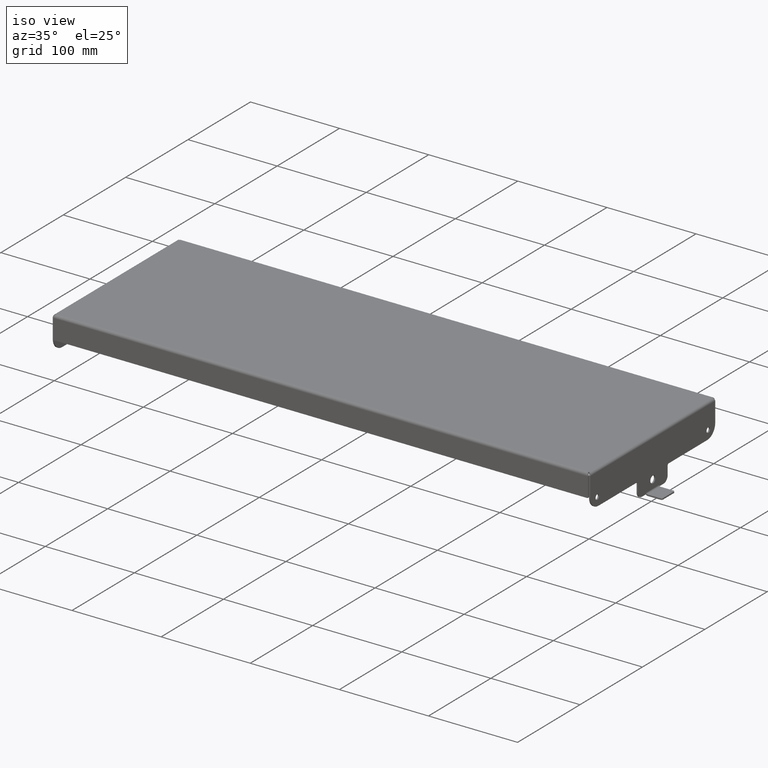
[diagram: clean part render]
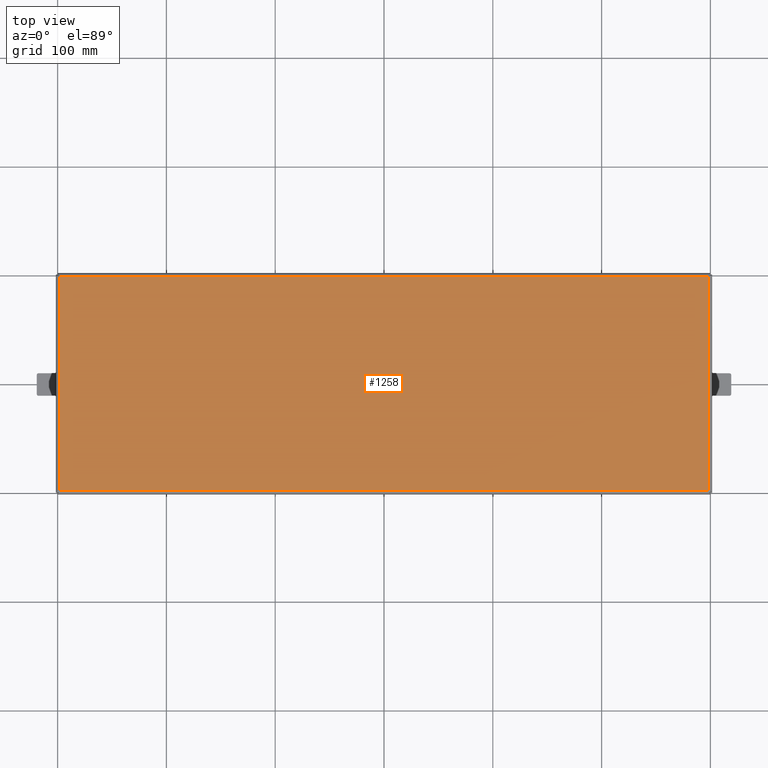
[diagram: tour spotlight — one face highlighted and labeled with its STEP entity id]
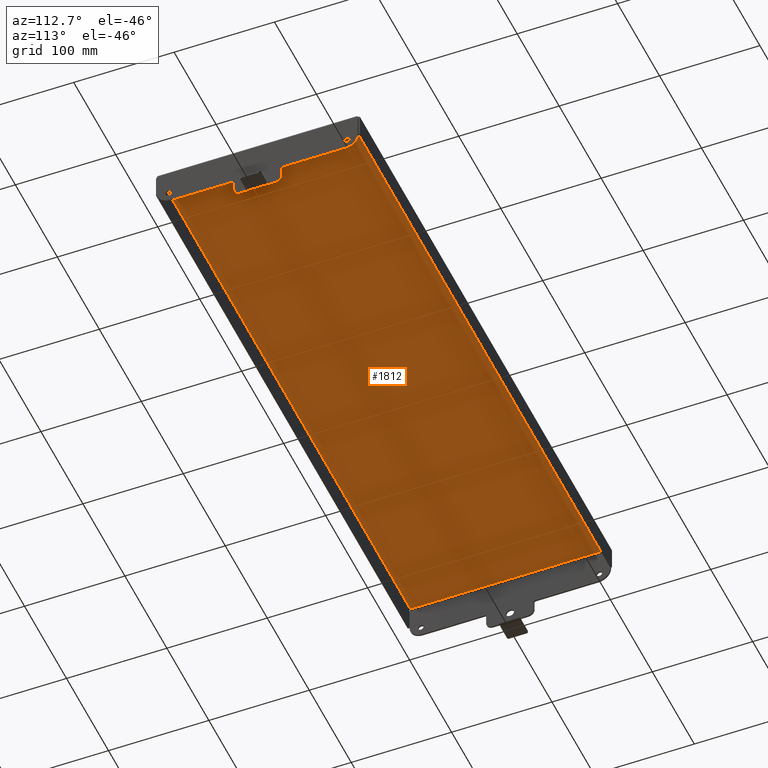
[diagram: tour spotlight — one face highlighted and labeled with its STEP entity id]
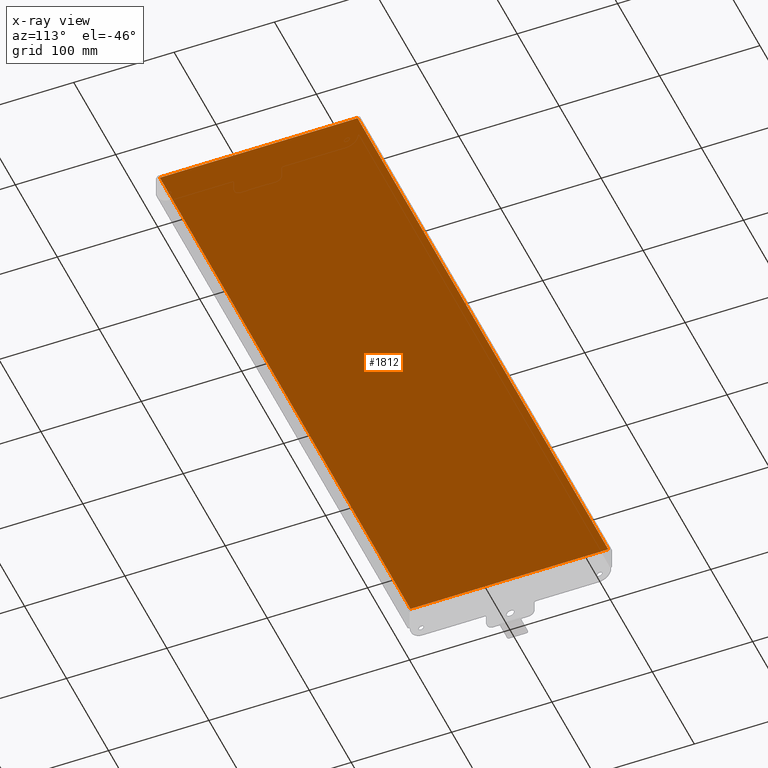
[diagram: x-ray of the same camera — body ghosted, this tour face saturated]
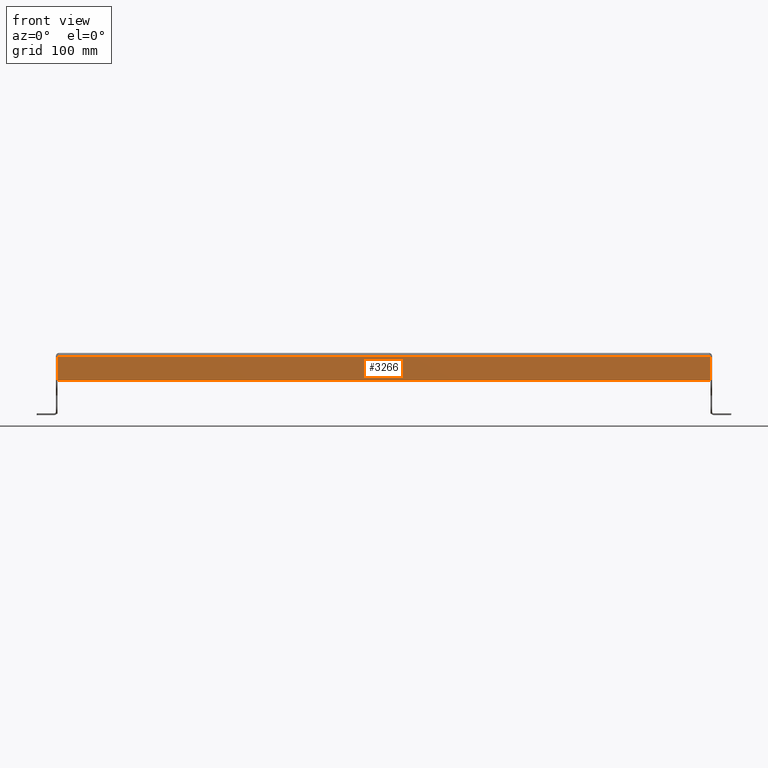
[diagram: tour spotlight — one face highlighted and labeled with its STEP entity id]
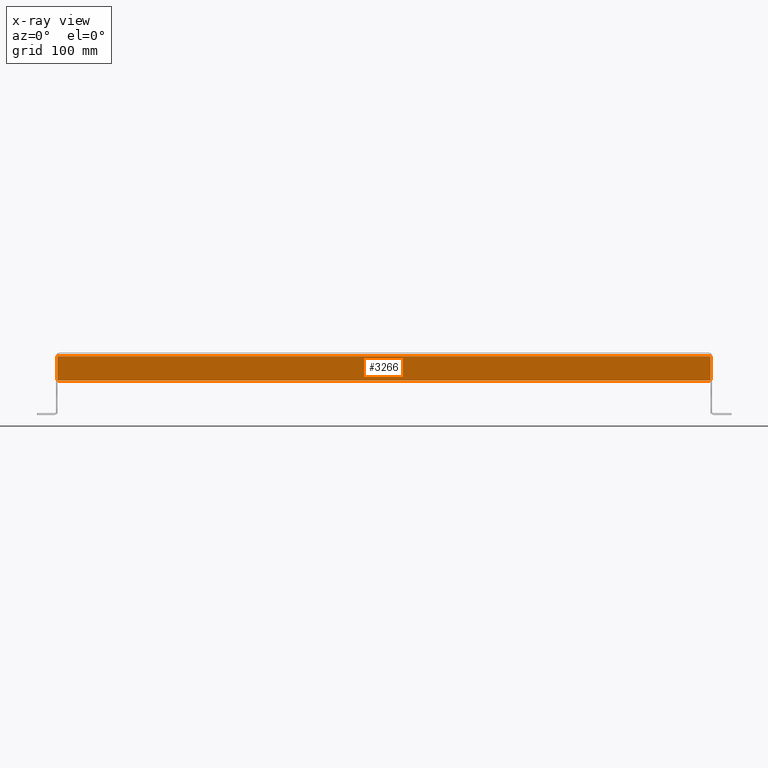
[diagram: x-ray of the same camera — body ghosted, this tour face saturated]
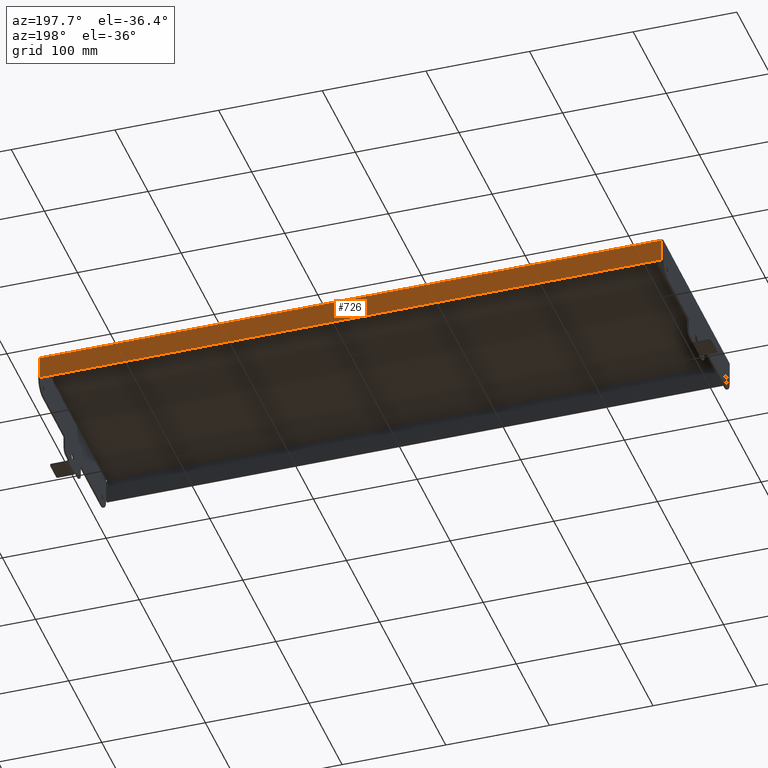
[diagram: tour spotlight — one face highlighted and labeled with its STEP entity id]
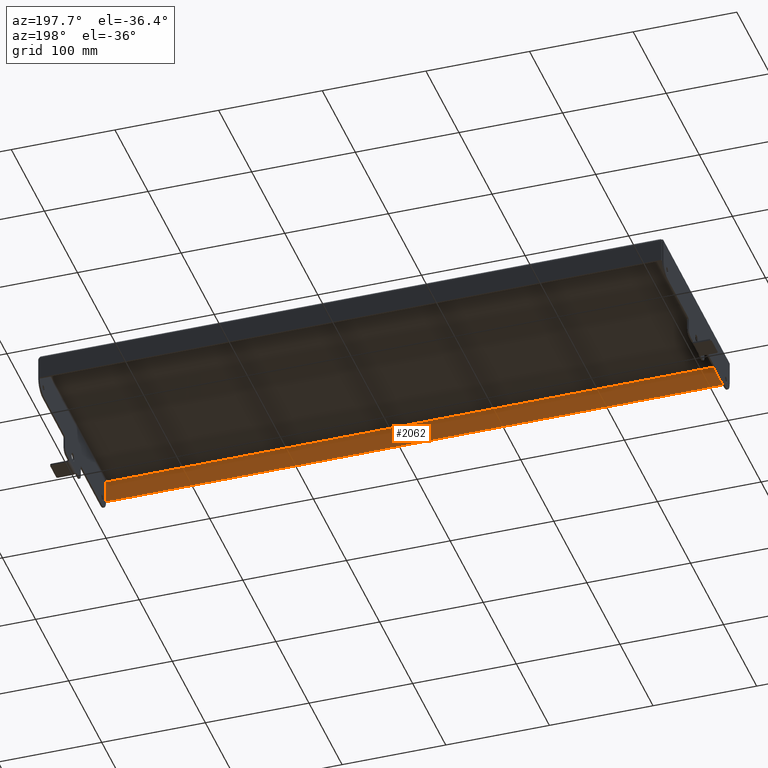
[diagram: tour spotlight — one face highlighted and labeled with its STEP entity id]
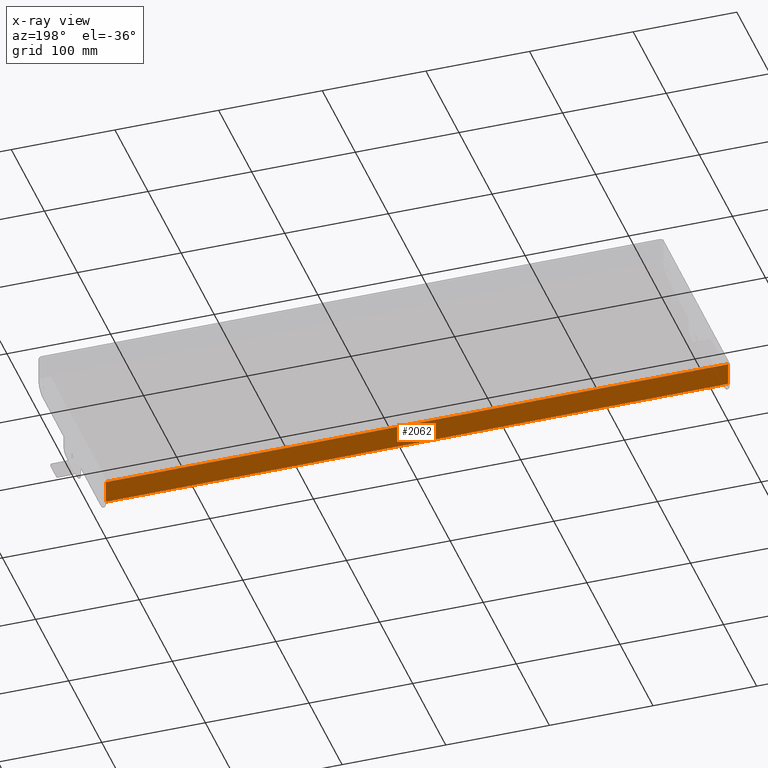
[diagram: x-ray of the same camera — body ghosted, this tour face saturated]
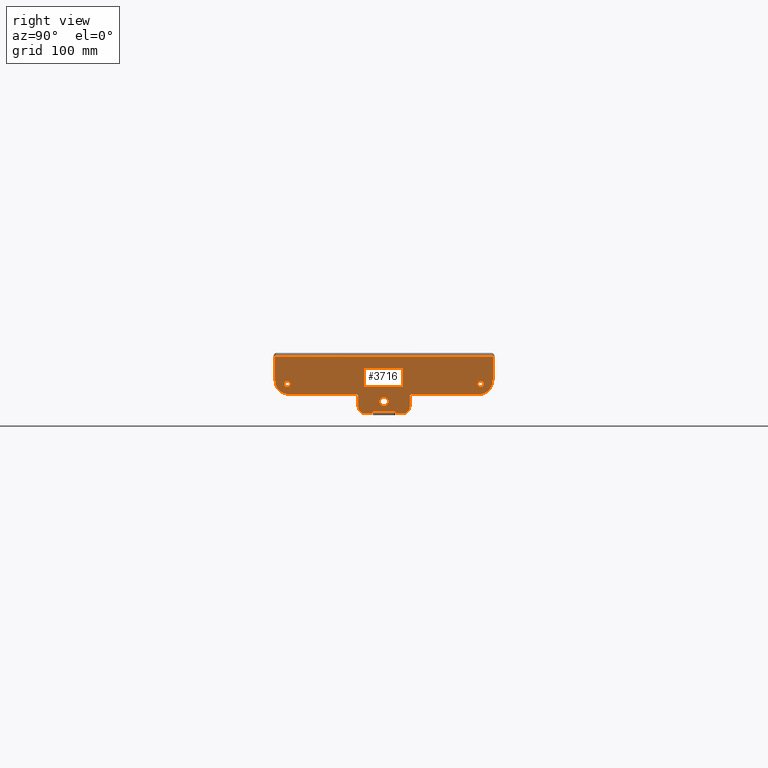
[diagram: tour spotlight — one face highlighted and labeled with its STEP entity id]
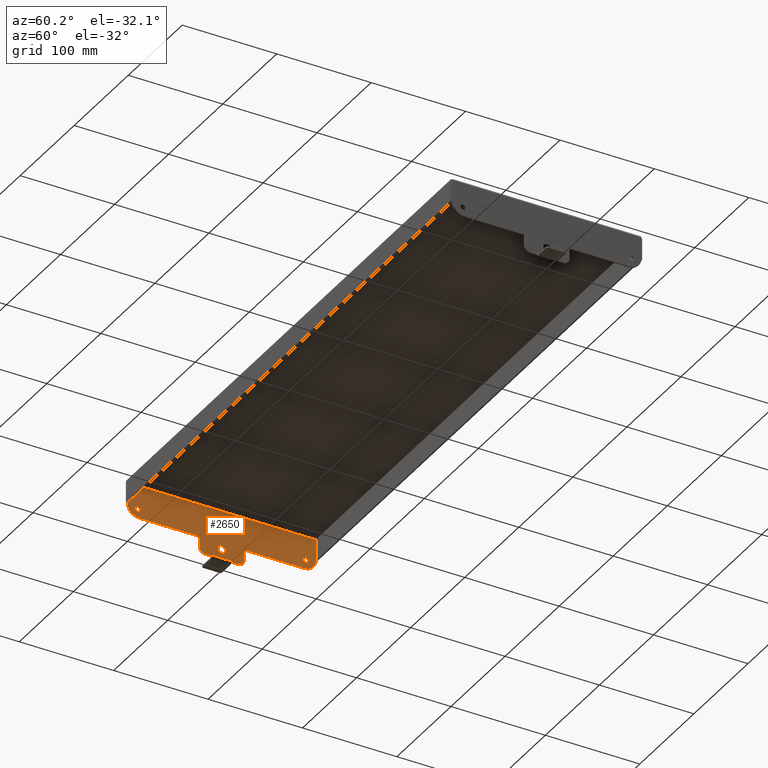
[diagram: tour spotlight — one face highlighted and labeled with its STEP entity id]
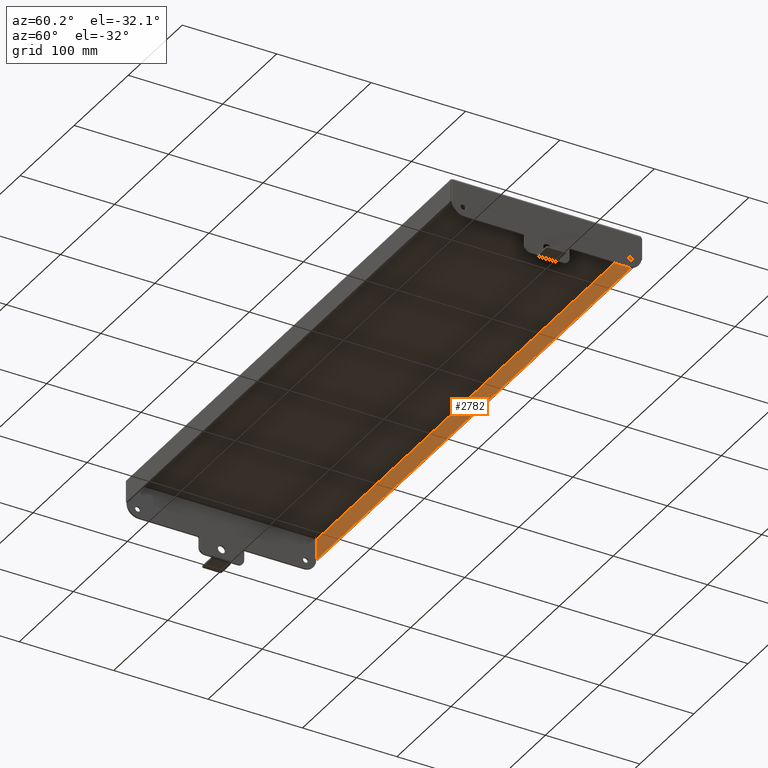
[diagram: tour spotlight — one face highlighted and labeled with its STEP entity id]
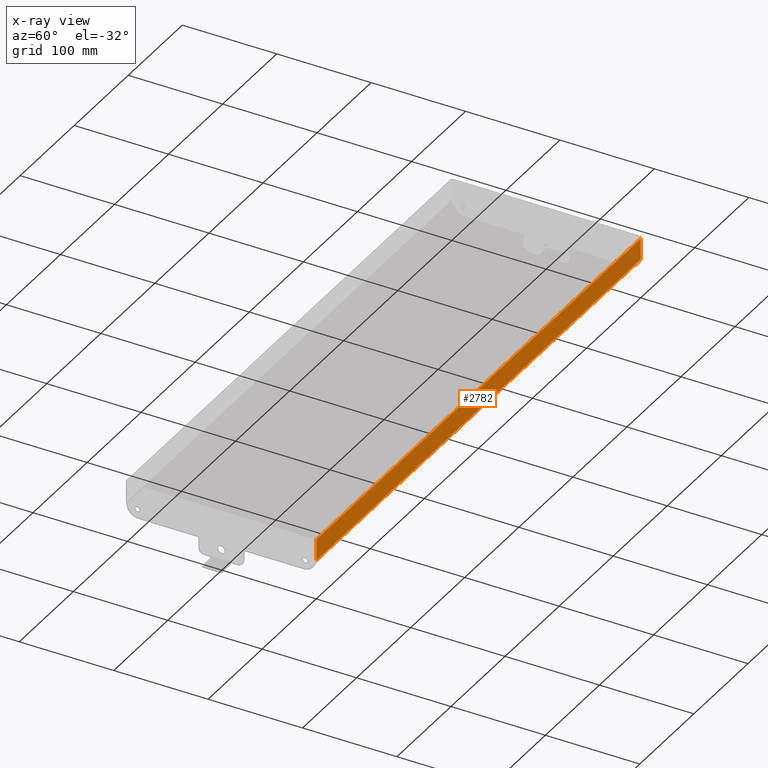
[diagram: x-ray of the same camera — body ghosted, this tour face saturated]
A machine part: a face-by-face anatomy tour. The part has 100 B-rep faces; the first image is the clean iso view, then the 8 largest visible faces are spotlighted one at a time (largest first), each with its STEP entity span.

Face 1 — top view, entity #1258. In plain terms, the highlighted planar face has unit normal (0, 0, 1).
Definition (entity closure, byte-faithful):
#6 = LINE ( 'NONE', #2886, #793 ) ;
#28 = EDGE_CURVE ( 'NONE', #3611, #2258, #6, .T. ) ;
#35 = VERTEX_POINT ( 'NONE', #1334 ) ;
#92 = LINE ( 'NONE', #402, #2644 ) ;
#117 = ORIENTED_EDGE ( 'NONE', *, *, #3964, .T. ) ;
#331 = CARTESIAN_POINT ( 'NONE',  ( -11.75500000000080902, 3.879999999999484306, 1.000000000000000000 ) ) ;
#402 = CARTESIAN_POINT ( 'NONE',  ( 0.0000000000000000000, -3.879999999999999449, 1.000000000000000000 ) ) ;
#548 = ORIENTED_EDGE ( 'NONE', *, *, #28, .T. ) ;
#555 = DIRECTION ( 'NONE',  ( 1.000000000000000000, 0.0000000000000000000, -0.0000000000000000000 ) ) ;
#558 = CARTESIAN_POINT ( 'NONE',  ( 11.75500000000080902, -3.879999999999484306, 1.000000000000000000 ) ) ;
#793 = VECTOR ( 'NONE', #1011, 39.37007874015748143 ) ;
#837 = VECTOR ( 'NONE', #3883, 39.37007874015748143 ) ;
#841 = CARTESIAN_POINT ( 'NONE',  ( 0.0000000000000000000, 3.879999999999999449, 1.000000000000000000 ) ) ;
#944 = EDGE_CURVE ( 'NONE', #2941, #35, #2378, .T. ) ;
#1011 = DIRECTION ( 'NONE',  ( 0.0000000000000000000, -1.000000000000000000, -0.0000000000000000000 ) ) ;
#1160 = DIRECTION ( 'NONE',  ( 0.0000000000000000000, 0.0000000000000000000, 1.000000000000000000 ) ) ;
#1258 = ADVANCED_FACE ( 'NONE', ( #1458 ), #2701, .T. ) ;
#1334 = CARTESIAN_POINT ( 'NONE',  ( 11.75500000000121936, 3.879999999997790550, 1.000000000000000000 ) ) ;
#1396 = AXIS2_PLACEMENT_3D ( 'NONE', #3938, #1160, #555 ) ;
#1458 = FACE_OUTER_BOUND ( 'NONE', #2861, .T. ) ;
#1538 = CARTESIAN_POINT ( 'NONE',  ( -11.75500000000081080, -3.879999999999484750, 1.000000000000000000 ) ) ;
#1647 = DIRECTION ( 'NONE',  ( 1.000000000000000000, 0.0000000000000000000, -0.0000000000000000000 ) ) ;
#1648 = EDGE_CURVE ( 'NONE', #2258, #2941, #92, .T. ) ;
#2258 = VERTEX_POINT ( 'NONE', #1538 ) ;
#2378 = LINE ( 'NONE', #3620, #3358 ) ;
#2392 = ORIENTED_EDGE ( 'NONE', *, *, #1648, .T. ) ;
#2473 = ORIENTED_EDGE ( 'NONE', *, *, #944, .T. ) ;
#2644 = VECTOR ( 'NONE', #1647, 39.37007874015748143 ) ;
#2701 = PLANE ( 'NONE',  #1396 ) ;
#2861 = EDGE_LOOP ( 'NONE', ( #117, #548, #2392, #2473 ) ) ;
#2886 = CARTESIAN_POINT ( 'NONE',  ( -11.75499999999999901, 0.0000000000000000000, 1.000000000000000000 ) ) ;
#2941 = VERTEX_POINT ( 'NONE', #558 ) ;
#2953 = LINE ( 'NONE', #841, #837 ) ;
#3358 = VECTOR ( 'NONE', #3714, 39.37007874015748143 ) ;
#3611 = VERTEX_POINT ( 'NONE', #331 ) ;
#3620 = CARTESIAN_POINT ( 'NONE',  ( 11.75499999999999901, 0.0000000000000000000, 1.000000000000000000 ) ) ;
#3714 = DIRECTION ( 'NONE',  ( -0.0000000000000000000, 1.000000000000000000, 0.0000000000000000000 ) ) ;
#3883 = DIRECTION ( 'NONE',  ( -1.000000000000000000, -0.0000000000000000000, 0.0000000000000000000 ) ) ;
#3938 = CARTESIAN_POINT ( 'NONE',  ( 0.0000000000000000000, 0.0000000000000000000, 1.000000000000000000 ) ) ;
#3964 = EDGE_CURVE ( 'NONE', #35, #3611, #2953, .T. ) ;

Face 2 — auxiliary view, entity #1812. An x-ray twin of the same camera follows (body ghosted, this face saturated) — the face is partly hidden behind the body. In plain terms, the highlighted planar face has unit normal (0, 0, 1).
Definition (entity closure, byte-faithful):
#200 = CARTESIAN_POINT ( 'NONE',  ( 11.87500000000000000, 3.879999999999999449, 0.9400000000000000577 ) ) ;
#201 = LINE ( 'NONE', #1797, #359 ) ;
#241 = LINE ( 'NONE', #200, #1900 ) ;
#359 = VECTOR ( 'NONE', #2766, 39.37007874015748143 ) ;
#873 = CARTESIAN_POINT ( 'NONE',  ( 11.75500000000121936, 3.879999999999871108, 0.9400000000000000577 ) ) ;
#941 = PLANE ( 'NONE',  #3811 ) ;
#1194 = EDGE_CURVE ( 'NONE', #2966, #3398, #201, .T. ) ;
#1340 = VERTEX_POINT ( 'NONE', #873 ) ;
#1388 = EDGE_CURVE ( 'NONE', #1340, #3381, #1790, .T. ) ;
#1442 = DIRECTION ( 'NONE',  ( 1.000000000000000000, -0.0000000000000000000, -0.0000000000000000000 ) ) ;
#1455 = CARTESIAN_POINT ( 'NONE',  ( 11.75499999999999901, -4.000000000000000000, 0.9400000000000000577 ) ) ;
#1762 = ORIENTED_EDGE ( 'NONE', *, *, #1194, .T. ) ;
#1790 = LINE ( 'NONE', #1455, #2190 ) ;
#1797 = CARTESIAN_POINT ( 'NONE',  ( -11.75499999999999901, 4.000000000000000000, 0.9400000000000000577 ) ) ;
#1812 = ADVANCED_FACE ( 'NONE', ( #2813 ), #941, .F. ) ;
#1835 = CARTESIAN_POINT ( 'NONE',  ( -11.87500000000000000, -3.879999999999999449, 0.9400000000000000577 ) ) ;
#1854 = CARTESIAN_POINT ( 'NONE',  ( 0.0000000000000000000, 0.0000000000000000000, 0.9399999999999999467 ) ) ;
#1900 = VECTOR ( 'NONE', #1442, 39.37007874015748143 ) ;
#1915 = DIRECTION ( 'NONE',  ( 0.0000000000000000000, 0.0000000000000000000, 1.000000000000000000 ) ) ;
#1971 = CARTESIAN_POINT ( 'NONE',  ( -11.75499999999646583, 3.879999999999742322, 0.9400000000000000577 ) ) ;
#2025 = EDGE_LOOP ( 'NONE', ( #2656, #3360, #1762, #3701 ) ) ;
#2078 = DIRECTION ( 'NONE',  ( -1.000000000000000000, -0.0000000000000000000, -0.0000000000000000000 ) ) ;
#2190 = VECTOR ( 'NONE', #3028, 39.37007874015748143 ) ;
#2214 = EDGE_CURVE ( 'NONE', #3398, #1340, #241, .T. ) ;
#2380 = LINE ( 'NONE', #1835, #3735 ) ;
#2656 = ORIENTED_EDGE ( 'NONE', *, *, #1388, .T. ) ;
#2766 = DIRECTION ( 'NONE',  ( -0.0000000000000000000, 1.000000000000000000, -0.0000000000000000000 ) ) ;
#2813 = FACE_OUTER_BOUND ( 'NONE', #2025, .T. ) ;
#2945 = EDGE_CURVE ( 'NONE', #3381, #2966, #2380, .T. ) ;
#2966 = VERTEX_POINT ( 'NONE', #3644 ) ;
#3028 = DIRECTION ( 'NONE',  ( -0.0000000000000000000, -1.000000000000000000, -0.0000000000000000000 ) ) ;
#3171 = CARTESIAN_POINT ( 'NONE',  ( 11.75499999999646583, -3.879999999999742322, 0.9400000000000000577 ) ) ;
#3360 = ORIENTED_EDGE ( 'NONE', *, *, #2945, .T. ) ;
#3381 = VERTEX_POINT ( 'NONE', #3171 ) ;
#3398 = VERTEX_POINT ( 'NONE', #1971 ) ;
#3644 = CARTESIAN_POINT ( 'NONE',  ( -11.75499999999646761, -3.879999999999484750, 0.9400000000000000577 ) ) ;
#3701 = ORIENTED_EDGE ( 'NONE', *, *, #2214, .T. ) ;
#3735 = VECTOR ( 'NONE', #2078, 39.37007874015748143 ) ;
#3811 = AXIS2_PLACEMENT_3D ( 'NONE', #1854, #1915, #4025 ) ;
#4025 = DIRECTION ( 'NONE',  ( 1.000000000000000000, 0.0000000000000000000, -0.0000000000000000000 ) ) ;

Face 3 — front view, entity #3266. An x-ray twin of the same camera follows (body ghosted, this face saturated) — the face is partly hidden behind the body. In plain terms, the highlighted planar face has unit normal (0, -1, 0).
Definition (entity closure, byte-faithful):
#44 = CARTESIAN_POINT ( 'NONE',  ( -11.87500000000000000, -4.000000000000000000, 0.0000000000000000000 ) ) ;
#158 = VERTEX_POINT ( 'NONE', #3335 ) ;
#260 = VERTEX_POINT ( 'NONE', #2264 ) ;
#276 = VECTOR ( 'NONE', #3766, 39.37007874015748143 ) ;
#379 = VECTOR ( 'NONE', #1633, 39.37007874015748143 ) ;
#385 = DIRECTION ( 'NONE',  ( -0.0000000000000000000, 0.0000000000000000000, 1.000000000000000000 ) ) ;
#459 = EDGE_CURVE ( 'NONE', #3960, #3176, #3867, .T. ) ;
#462 = CARTESIAN_POINT ( 'NONE',  ( -11.87500000000000000, -3.999999999999999556, 0.8800000000000000044 ) ) ;
#513 = CARTESIAN_POINT ( 'NONE',  ( -11.81500000000006878, -4.000000000000000000, 0.8800000000000141043 ) ) ;
#566 = EDGE_CURVE ( 'NONE', #2364, #3594, #2450, .T. ) ;
#596 = DIRECTION ( 'NONE',  ( 0.0000000000000000000, 0.0000000000000000000, -1.000000000000000000 ) ) ;
#750 = EDGE_CURVE ( 'NONE', #3960, #260, #3740, .T. ) ;
#997 = CARTESIAN_POINT ( 'NONE',  ( 11.78374999999999950, -4.000000000000000000, 0.0000000000000000000 ) ) ;
#1078 = AXIS2_PLACEMENT_3D ( 'NONE', #2229, #1991, #1296 ) ;
#1093 = VECTOR ( 'NONE', #2060, 39.37007874015748143 ) ;
#1214 = AXIS2_PLACEMENT_3D ( 'NONE', #1930, #3173, #2839 ) ;
#1215 = ORIENTED_EDGE ( 'NONE', *, *, #3553, .T. ) ;
#1296 = DIRECTION ( 'NONE',  ( 0.0000000000000000000, -0.0000000000000000000, -1.000000000000000000 ) ) ;
#1407 = VECTOR ( 'NONE', #385, 39.37007874015748143 ) ;
#1546 = LINE ( 'NONE', #44, #276 ) ;
#1633 = DIRECTION ( 'NONE',  ( 0.0000000000000000000, -0.0000000000000000000, -1.000000000000000000 ) ) ;
#1666 = EDGE_CURVE ( 'NONE', #3594, #3176, #3498, .T. ) ;
#1695 = EDGE_CURVE ( 'NONE', #260, #158, #2970, .T. ) ;
#1828 = ORIENTED_EDGE ( 'NONE', *, *, #566, .T. ) ;
#1837 = DIRECTION ( 'NONE',  ( 0.0000000000000000000, -1.000000000000000000, 0.0000000000000000000 ) ) ;
#1930 = CARTESIAN_POINT ( 'NONE',  ( -11.78374999999999950, -4.000000000000000000, 0.03125000000000000000 ) ) ;
#1991 = DIRECTION ( 'NONE',  ( 0.0000000000000000000, -1.000000000000000000, 0.0000000000000000000 ) ) ;
#2060 = DIRECTION ( 'NONE',  ( 1.000000000000000000, 0.0000000000000000000, 0.0000000000000000000 ) ) ;
#2092 = ORIENTED_EDGE ( 'NONE', *, *, #1695, .T. ) ;
#2229 = CARTESIAN_POINT ( 'NONE',  ( -11.87500000000000000, -4.000000000000000000, 0.0000000000000000000 ) ) ;
#2264 = CARTESIAN_POINT ( 'NONE',  ( -11.81499999999999773, -4.000000000000000000, 0.03125000000000000000 ) ) ;
#2279 = CARTESIAN_POINT ( 'NONE',  ( 11.81499999999999773, -4.000000000000000000, 0.8800000000000000044 ) ) ;
#2364 = VERTEX_POINT ( 'NONE', #997 ) ;
#2444 = CARTESIAN_POINT ( 'NONE',  ( 11.78374999999999950, -4.000000000000000000, 0.03125000000000000000 ) ) ;
#2450 = CIRCLE ( 'NONE', #2850, 0.03125000000000000000 ) ;
#2484 = CARTESIAN_POINT ( 'NONE',  ( 11.81499999999999773, -4.000000000000000000, 0.03124999999999998612 ) ) ;
#2769 = ORIENTED_EDGE ( 'NONE', *, *, #459, .F. ) ;
#2839 = DIRECTION ( 'NONE',  ( 0.0000000000000000000, 0.0000000000000000000, -1.000000000000000000 ) ) ;
#2850 = AXIS2_PLACEMENT_3D ( 'NONE', #2444, #1837, #596 ) ;
#2851 = EDGE_LOOP ( 'NONE', ( #3643, #2092, #1215, #1828, #3633, #2769 ) ) ;
#2970 = CIRCLE ( 'NONE', #1214, 0.03125000000000000000 ) ;
#3148 = FACE_OUTER_BOUND ( 'NONE', #2851, .T. ) ;
#3173 = DIRECTION ( 'NONE',  ( 0.0000000000000000000, -1.000000000000000000, 0.0000000000000000000 ) ) ;
#3176 = VERTEX_POINT ( 'NONE', #2279 ) ;
#3193 = CARTESIAN_POINT ( 'NONE',  ( 11.81500000000000128, -4.000000000000000000, 0.0000000000000000000 ) ) ;
#3266 = ADVANCED_FACE ( 'NONE', ( #3148 ), #3793, .T. ) ;
#3335 = CARTESIAN_POINT ( 'NONE',  ( -11.78374999999999950, -4.000000000000000000, 0.0000000000000000000 ) ) ;
#3442 = CARTESIAN_POINT ( 'NONE',  ( -11.81499999999999773, -4.000000000000000000, 0.0000000000000000000 ) ) ;
#3498 = LINE ( 'NONE', #3193, #1407 ) ;
#3553 = EDGE_CURVE ( 'NONE', #158, #2364, #1546, .T. ) ;
#3594 = VERTEX_POINT ( 'NONE', #2484 ) ;
#3633 = ORIENTED_EDGE ( 'NONE', *, *, #1666, .T. ) ;
#3643 = ORIENTED_EDGE ( 'NONE', *, *, #750, .T. ) ;
#3740 = LINE ( 'NONE', #3442, #379 ) ;
#3766 = DIRECTION ( 'NONE',  ( 1.000000000000000000, 0.0000000000000000000, 0.0000000000000000000 ) ) ;
#3793 = PLANE ( 'NONE',  #1078 ) ;
#3867 = LINE ( 'NONE', #462, #1093 ) ;
#3960 = VERTEX_POINT ( 'NONE', #513 ) ;

Face 4 — auxiliary view, entity #726. In plain terms, the highlighted planar face has unit normal (0, 1, 0).
Definition (entity closure, byte-faithful):
#85 = VERTEX_POINT ( 'NONE', #1094 ) ;
#94 = VERTEX_POINT ( 'NONE', #3610 ) ;
#175 = CIRCLE ( 'NONE', #319, 0.03125000000000000000 ) ;
#195 = VERTEX_POINT ( 'NONE', #921 ) ;
#197 = EDGE_CURVE ( 'NONE', #486, #85, #1328, .T. ) ;
#264 = FACE_OUTER_BOUND ( 'NONE', #902, .T. ) ;
#306 = CARTESIAN_POINT ( 'NONE',  ( 11.87500000000000000, 4.000000000000000000, 0.0000000000000000000 ) ) ;
#319 = AXIS2_PLACEMENT_3D ( 'NONE', #2233, #1514, #3730 ) ;
#371 = LINE ( 'NONE', #2443, #1775 ) ;
#386 = ORIENTED_EDGE ( 'NONE', *, *, #3407, .T. ) ;
#421 = CARTESIAN_POINT ( 'NONE',  ( -11.78374999999999950, 4.000000000000000000, 0.03125000000000000000 ) ) ;
#486 = VERTEX_POINT ( 'NONE', #3535 ) ;
#726 = ADVANCED_FACE ( 'NONE', ( #264 ), #4000, .T. ) ;
#902 = EDGE_LOOP ( 'NONE', ( #3580, #1134, #1737, #3082, #386, #3063 ) ) ;
#921 = CARTESIAN_POINT ( 'NONE',  ( 11.78374999999999950, 4.000000000000000000, 0.0000000000000000000 ) ) ;
#965 = DIRECTION ( 'NONE',  ( 0.0000000000000000000, -0.0000000000000000000, 1.000000000000000000 ) ) ;
#1094 = CARTESIAN_POINT ( 'NONE',  ( -11.81499999999999773, 4.000000000000000000, 0.8800000000000000044 ) ) ;
#1134 = ORIENTED_EDGE ( 'NONE', *, *, #3302, .T. ) ;
#1186 = DIRECTION ( 'NONE',  ( -0.0000000000000000000, 0.0000000000000000000, -1.000000000000000000 ) ) ;
#1225 = DIRECTION ( 'NONE',  ( 0.0000000000000000000, 1.000000000000000000, 0.0000000000000000000 ) ) ;
#1328 = LINE ( 'NONE', #3511, #2674 ) ;
#1510 = VECTOR ( 'NONE', #1186, 39.37007874015748143 ) ;
#1514 = DIRECTION ( 'NONE',  ( 0.0000000000000000000, 1.000000000000000000, 0.0000000000000000000 ) ) ;
#1599 = CIRCLE ( 'NONE', #3866, 0.03125000000000000000 ) ;
#1646 = VERTEX_POINT ( 'NONE', #2554 ) ;
#1737 = ORIENTED_EDGE ( 'NONE', *, *, #197, .T. ) ;
#1774 = EDGE_CURVE ( 'NONE', #195, #94, #2793, .T. ) ;
#1775 = VECTOR ( 'NONE', #3683, 39.37007874015748143 ) ;
#2128 = AXIS2_PLACEMENT_3D ( 'NONE', #2197, #1225, #3700 ) ;
#2197 = CARTESIAN_POINT ( 'NONE',  ( 11.87500000000000000, 4.000000000000000000, 0.0000000000000000000 ) ) ;
#2233 = CARTESIAN_POINT ( 'NONE',  ( 11.78374999999999950, 4.000000000000000000, 0.03125000000000000000 ) ) ;
#2290 = DIRECTION ( 'NONE',  ( 0.0000000000000000000, 0.0000000000000000000, 1.000000000000000000 ) ) ;
#2381 = EDGE_CURVE ( 'NONE', #3086, #195, #175, .T. ) ;
#2443 = CARTESIAN_POINT ( 'NONE',  ( 11.87500000000000000, 3.999999999999999556, 0.8800000000000000044 ) ) ;
#2554 = CARTESIAN_POINT ( 'NONE',  ( 11.81500000000006878, 4.000000000000000000, 0.8800000000000141043 ) ) ;
#2674 = VECTOR ( 'NONE', #965, 39.37007874015748143 ) ;
#2733 = LINE ( 'NONE', #3968, #1510 ) ;
#2793 = LINE ( 'NONE', #306, #3750 ) ;
#2876 = DIRECTION ( 'NONE',  ( -1.000000000000000000, -0.0000000000000000000, 0.0000000000000000000 ) ) ;
#3063 = ORIENTED_EDGE ( 'NONE', *, *, #2381, .T. ) ;
#3082 = ORIENTED_EDGE ( 'NONE', *, *, #3544, .F. ) ;
#3086 = VERTEX_POINT ( 'NONE', #3465 ) ;
#3302 = EDGE_CURVE ( 'NONE', #94, #486, #1599, .T. ) ;
#3407 = EDGE_CURVE ( 'NONE', #1646, #3086, #2733, .T. ) ;
#3465 = CARTESIAN_POINT ( 'NONE',  ( 11.81499999999999773, 4.000000000000000000, 0.03125000000000000000 ) ) ;
#3511 = CARTESIAN_POINT ( 'NONE',  ( -11.81500000000000128, 4.000000000000000000, 0.0000000000000000000 ) ) ;
#3535 = CARTESIAN_POINT ( 'NONE',  ( -11.81499999999999773, 4.000000000000000000, 0.03125000000000000000 ) ) ;
#3544 = EDGE_CURVE ( 'NONE', #1646, #85, #371, .T. ) ;
#3580 = ORIENTED_EDGE ( 'NONE', *, *, #1774, .T. ) ;
#3610 = CARTESIAN_POINT ( 'NONE',  ( -11.78374999999999950, 4.000000000000000000, 0.0000000000000000000 ) ) ;
#3683 = DIRECTION ( 'NONE',  ( -1.000000000000000000, 0.0000000000000000000, 0.0000000000000000000 ) ) ;
#3700 = DIRECTION ( 'NONE',  ( 0.0000000000000000000, -0.0000000000000000000, 1.000000000000000000 ) ) ;
#3730 = DIRECTION ( 'NONE',  ( 0.0000000000000000000, 0.0000000000000000000, 1.000000000000000000 ) ) ;
#3750 = VECTOR ( 'NONE', #2876, 39.37007874015748143 ) ;
#3831 = DIRECTION ( 'NONE',  ( 0.0000000000000000000, 1.000000000000000000, 0.0000000000000000000 ) ) ;
#3866 = AXIS2_PLACEMENT_3D ( 'NONE', #421, #3831, #2290 ) ;
#3968 = CARTESIAN_POINT ( 'NONE',  ( 11.81499999999999773, 4.000000000000000000, 0.0000000000000000000 ) ) ;
#4000 = PLANE ( 'NONE',  #2128 ) ;

Face 5 — auxiliary view, entity #2062. An x-ray twin of the same camera follows (body ghosted, this face saturated) — the face is partly hidden behind the body. In plain terms, the highlighted planar face has unit normal (0, -1, 0).
Definition (entity closure, byte-faithful):
#141 = CARTESIAN_POINT ( 'NONE',  ( -11.87500000000000000, -3.939999999999999503, 0.8800000000000000044 ) ) ;
#213 = LINE ( 'NONE', #1452, #2389 ) ;
#227 = CARTESIAN_POINT ( 'NONE',  ( 11.78374999999999950, -3.939999999999999947, 0.0000000000000000000 ) ) ;
#539 = CARTESIAN_POINT ( 'NONE',  ( 0.0000000000000000000, -3.939999999999999947, 0.0000000000000000000 ) ) ;
#544 = ORIENTED_EDGE ( 'NONE', *, *, #2442, .F. ) ;
#568 = VERTEX_POINT ( 'NONE', #2688 ) ;
#700 = VERTEX_POINT ( 'NONE', #3388 ) ;
#735 = VECTOR ( 'NONE', #2583, 39.37007874015748143 ) ;
#1091 = CARTESIAN_POINT ( 'NONE',  ( -11.78374999999999950, -3.939999999999999947, 0.0000000000000000000 ) ) ;
#1178 = CARTESIAN_POINT ( 'NONE',  ( 11.81499999999999773, -3.939999999999999947, 0.8800000000000000044 ) ) ;
#1378 = VECTOR ( 'NONE', #2262, 39.37007874015748143 ) ;
#1452 = CARTESIAN_POINT ( 'NONE',  ( 11.81499999999999773, -3.939999999999999947, 0.4400000000000000022 ) ) ;
#1554 = CARTESIAN_POINT ( 'NONE',  ( -11.78374999999999950, -3.939999999999999947, 0.03125000000000000000 ) ) ;
#1628 = ORIENTED_EDGE ( 'NONE', *, *, #2535, .F. ) ;
#1784 = DIRECTION ( 'NONE',  ( 0.0000000000000000000, -1.000000000000000000, 0.0000000000000000000 ) ) ;
#1822 = FACE_OUTER_BOUND ( 'NONE', #3313, .T. ) ;
#1946 = ORIENTED_EDGE ( 'NONE', *, *, #3698, .T. ) ;
#2031 = AXIS2_PLACEMENT_3D ( 'NONE', #3408, #1784, #2736 ) ;
#2062 = ADVANCED_FACE ( 'NONE', ( #1822 ), #2083, .F. ) ;
#2083 = PLANE ( 'NONE',  #2031 ) ;
#2129 = DIRECTION ( 'NONE',  ( 0.0000000000000000000, -1.000000000000000000, 0.0000000000000000000 ) ) ;
#2165 = VERTEX_POINT ( 'NONE', #1178 ) ;
#2192 = ORIENTED_EDGE ( 'NONE', *, *, #2985, .F. ) ;
#2262 = DIRECTION ( 'NONE',  ( 0.0000000000000000000, -0.0000000000000000000, 1.000000000000000000 ) ) ;
#2313 = VECTOR ( 'NONE', #2441, 39.37007874015748143 ) ;
#2342 = DIRECTION ( 'NONE',  ( 0.0000000000000000000, -1.000000000000000000, 0.0000000000000000000 ) ) ;
#2389 = VECTOR ( 'NONE', #2692, 39.37007874015748143 ) ;
#2441 = DIRECTION ( 'NONE',  ( 1.000000000000000000, -0.0000000000000000000, 0.0000000000000000000 ) ) ;
#2442 = EDGE_CURVE ( 'NONE', #3237, #2540, #2579, .T. ) ;
#2535 = EDGE_CURVE ( 'NONE', #568, #2165, #213, .T. ) ;
#2540 = VERTEX_POINT ( 'NONE', #1091 ) ;
#2564 = CARTESIAN_POINT ( 'NONE',  ( -11.81499999999999773, -3.939999999999999947, 0.4400000000000000022 ) ) ;
#2579 = CIRCLE ( 'NONE', #3631, 0.03125000000000000000 ) ;
#2583 = DIRECTION ( 'NONE',  ( 1.000000000000000000, 0.0000000000000000000, 0.0000000000000000000 ) ) ;
#2586 = ORIENTED_EDGE ( 'NONE', *, *, #3729, .T. ) ;
#2602 = LINE ( 'NONE', #2564, #1378 ) ;
#2622 = LINE ( 'NONE', #141, #735 ) ;
#2688 = CARTESIAN_POINT ( 'NONE',  ( 11.81499999999999773, -3.939999999999999947, 0.03124999999999998612 ) ) ;
#2692 = DIRECTION ( 'NONE',  ( 0.0000000000000000000, -0.0000000000000000000, 1.000000000000000000 ) ) ;
#2736 = DIRECTION ( 'NONE',  ( 0.0000000000000000000, -0.0000000000000000000, -1.000000000000000000 ) ) ;
#2781 = CIRCLE ( 'NONE', #2853, 0.03125000000000000000 ) ;
#2853 = AXIS2_PLACEMENT_3D ( 'NONE', #3918, #2342, #3582 ) ;
#2928 = ORIENTED_EDGE ( 'NONE', *, *, #3995, .F. ) ;
#2985 = EDGE_CURVE ( 'NONE', #2540, #3525, #3922, .T. ) ;
#3125 = DIRECTION ( 'NONE',  ( 0.0000000000000000000, 0.0000000000000000000, -1.000000000000000000 ) ) ;
#3237 = VERTEX_POINT ( 'NONE', #3819 ) ;
#3313 = EDGE_LOOP ( 'NONE', ( #2586, #1628, #2928, #2192, #544, #1946 ) ) ;
#3388 = CARTESIAN_POINT ( 'NONE',  ( -11.81500000000006878, -3.939999999999999947, 0.8800000000000269829 ) ) ;
#3408 = CARTESIAN_POINT ( 'NONE',  ( -11.87500000000000000, -3.939999999999999947, 0.0000000000000000000 ) ) ;
#3525 = VERTEX_POINT ( 'NONE', #227 ) ;
#3582 = DIRECTION ( 'NONE',  ( 0.0000000000000000000, 0.0000000000000000000, -1.000000000000000000 ) ) ;
#3631 = AXIS2_PLACEMENT_3D ( 'NONE', #1554, #2129, #3125 ) ;
#3698 = EDGE_CURVE ( 'NONE', #3237, #700, #2602, .T. ) ;
#3729 = EDGE_CURVE ( 'NONE', #700, #2165, #2622, .T. ) ;
#3819 = CARTESIAN_POINT ( 'NONE',  ( -11.81499999999999773, -3.939999999999999947, 0.03125000000000000000 ) ) ;
#3918 = CARTESIAN_POINT ( 'NONE',  ( 11.78374999999999950, -3.939999999999999947, 0.03125000000000000000 ) ) ;
#3922 = LINE ( 'NONE', #539, #2313 ) ;
#3995 = EDGE_CURVE ( 'NONE', #3525, #568, #2781, .T. ) ;

Face 6 — right view, entity #3716. In plain terms, the highlighted planar face has unit normal (1, 0, 0).
Definition (entity closure, byte-faithful):
#9 = EDGE_CURVE ( 'NONE', #668, #3773, #1929, .T. ) ;
#27 = VECTOR ( 'NONE', #1040, 39.37007874015748143 ) ;
#39 = EDGE_CURVE ( 'NONE', #2037, #2037, #3065, .T. ) ;
#58 = CARTESIAN_POINT ( 'NONE',  ( 11.87500000000000000, -4.000000000000000000, -1.189999999999999947 ) ) ;
#83 = FACE_BOUND ( 'NONE', #1779, .T. ) ;
#84 = CARTESIAN_POINT ( 'NONE',  ( 11.87500000000000000, 0.4218499999999997807, -1.129999999999999893 ) ) ;
#100 = ORIENTED_EDGE ( 'NONE', *, *, #229, .T. ) ;
#103 = DIRECTION ( 'NONE',  ( 1.000000000000000000, 0.0000000000000000000, 0.0000000000000000000 ) ) ;
#110 = AXIS2_PLACEMENT_3D ( 'NONE', #880, #285, #3419 ) ;
#120 = FACE_BOUND ( 'NONE', #1825, .T. ) ;
#136 = VECTOR ( 'NONE', #1963, 39.37007874015748143 ) ;
#147 = EDGE_CURVE ( 'NONE', #3647, #1851, #1770, .T. ) ;
#170 = DIRECTION ( 'NONE',  ( 0.0000000000000000000, 0.0000000000000000000, -1.000000000000000000 ) ) ;
#209 = CARTESIAN_POINT ( 'NONE',  ( 11.87500000000000000, -0.6875000000000000000, -1.189999999999999947 ) ) ;
#217 = EDGE_CURVE ( 'NONE', #2604, #236, #2545, .T. ) ;
#229 = EDGE_CURVE ( 'NONE', #3343, #1112, #3469, .T. ) ;
#230 = AXIS2_PLACEMENT_3D ( 'NONE', #1803, #3036, #1819 ) ;
#236 = VERTEX_POINT ( 'NONE', #637 ) ;
#269 = EDGE_CURVE ( 'NONE', #236, #1006, #658, .T. ) ;
#270 = VECTOR ( 'NONE', #3192, 39.37007874015748143 ) ;
#285 = DIRECTION ( 'NONE',  ( 1.000000000000000000, 0.0000000000000000000, 0.0000000000000000000 ) ) ;
#287 = LINE ( 'NONE', #3947, #2827 ) ;
#307 = CIRCLE ( 'NONE', #4004, 0.2499999999999999167 ) ;
#309 = CARTESIAN_POINT ( 'NONE',  ( 11.87499999999704769, 0.4324296188420504450, -1.190000000000585034 ) ) ;
#310 = VECTOR ( 'NONE', #2207, 39.37007874015748143 ) ;
#318 = CARTESIAN_POINT ( 'NONE',  ( 11.87500000000000000, -0.6875000000000000000, -0.9399999999999999467 ) ) ;
#339 = DIRECTION ( 'NONE',  ( 1.000000000000000000, 0.0000000000000000000, 0.0000000000000000000 ) ) ;
#373 = ORIENTED_EDGE ( 'NONE', *, *, #398, .T. ) ;
#374 = ORIENTED_EDGE ( 'NONE', *, *, #3169, .T. ) ;
#398 = EDGE_CURVE ( 'NONE', #3607, #460, #2383, .T. ) ;
#413 = CARTESIAN_POINT ( 'NONE',  ( 11.87500000000000000, -4.000000000000000000, 0.0000000000000000000 ) ) ;
#437 = ORIENTED_EDGE ( 'NONE', *, *, #2137, .T. ) ;
#447 = AXIS2_PLACEMENT_3D ( 'NONE', #3446, #3160, #3744 ) ;
#460 = VERTEX_POINT ( 'NONE', #3312 ) ;
#598 = AXIS2_PLACEMENT_3D ( 'NONE', #729, #3497, #3149 ) ;
#624 = LINE ( 'NONE', #3066, #1988 ) ;
#637 = CARTESIAN_POINT ( 'NONE',  ( 11.87500000000000000, 0.4218499999999997807, -1.129999999999999893 ) ) ;
#641 = EDGE_CURVE ( 'NONE', #1112, #1843, #3239, .T. ) ;
#656 = CARTESIAN_POINT ( 'NONE',  ( 11.87500000000000000, -3.439999999999999947, -0.5000000000000000000 ) ) ;
#658 = LINE ( 'NONE', #84, #781 ) ;
#668 = VERTEX_POINT ( 'NONE', #937 ) ;
#673 = EDGE_CURVE ( 'NONE', #3343, #4012, #1563, .T. ) ;
#690 = DIRECTION ( 'NONE',  ( -0.0000000000000000000, 1.000000000000000000, 0.0000000000000000000 ) ) ;
#729 = CARTESIAN_POINT ( 'NONE',  ( 11.87500000000000000, 3.500000000000000000, -0.1250000000000000000 ) ) ;
#781 = VECTOR ( 'NONE', #3786, 39.37007874015748143 ) ;
#782 = EDGE_LOOP ( 'NONE', ( #3226, #2831, #3921, #437, #3881, #100, #1789, #2315, #3577, #867, #1720, #1698, #2964, #2039, #2528, #2750, #3855, #806, #373, #374 ) ) ;
#806 = ORIENTED_EDGE ( 'NONE', *, *, #2317, .T. ) ;
#852 = ORIENTED_EDGE ( 'NONE', *, *, #1248, .T. ) ;
#867 = ORIENTED_EDGE ( 'NONE', *, *, #2789, .T. ) ;
#880 = CARTESIAN_POINT ( 'NONE',  ( 11.87500000000000000, -3.439999999999999947, 0.0000000000000000000 ) ) ;
#884 = CIRCLE ( 'NONE', #2694, 0.1562500000000000000 ) ;
#919 = VERTEX_POINT ( 'NONE', #3015 ) ;
#937 = CARTESIAN_POINT ( 'NONE',  ( 11.87499999999999645, -0.4324296188428122245, -1.190000000000097868 ) ) ;
#972 = EDGE_CURVE ( 'NONE', #919, #2604, #624, .T. ) ;
#1006 = VERTEX_POINT ( 'NONE', #309 ) ;
#1036 = LINE ( 'NONE', #58, #2808 ) ;
#1040 = DIRECTION ( 'NONE',  ( -0.0000000000000000000, -0.0000000000000000000, 1.000000000000000000 ) ) ;
#1042 = CARTESIAN_POINT ( 'NONE',  ( 11.87500000000321876, -0.4218499999999041350, -1.129999999999478755 ) ) ;
#1067 = CARTESIAN_POINT ( 'NONE',  ( 11.87500000000000000, -0.9375000000000000000, 0.0000000000000000000 ) ) ;
#1112 = VERTEX_POINT ( 'NONE', #2020 ) ;
#1136 = CARTESIAN_POINT ( 'NONE',  ( 11.87500000000000000, 0.0000000000000000000, -0.7599999999999998979 ) ) ;
#1137 = CARTESIAN_POINT ( 'NONE',  ( 11.87500000000000000, 3.939999999999999947, 0.8800000000000000044 ) ) ;
#1141 = DIRECTION ( 'NONE',  ( -0.0000000000000000000, 1.000000000000000000, 0.0000000000000000000 ) ) ;
#1248 = EDGE_CURVE ( 'NONE', #2702, #2702, #884, .T. ) ;
#1306 = CARTESIAN_POINT ( 'NONE',  ( 11.87500000000000000, 0.9374999999999997780, -0.5625000000000000000 ) ) ;
#1343 = DIRECTION ( 'NONE',  ( 0.0000000000000000000, 0.0000000000000000000, -1.000000000000000000 ) ) ;
#1413 = EDGE_CURVE ( 'NONE', #3512, #668, #3894, .T. ) ;
#1416 = EDGE_CURVE ( 'NONE', #3993, #3647, #1498, .T. ) ;
#1498 = LINE ( 'NONE', #2697, #3372 ) ;
#1499 = DIRECTION ( 'NONE',  ( -0.0000000000000000000, 1.000000000000000000, 0.0000000000000000000 ) ) ;
#1563 = LINE ( 'NONE', #4021, #1808 ) ;
#1587 = ORIENTED_EDGE ( 'NONE', *, *, #3034, .T. ) ;
#1591 = EDGE_CURVE ( 'NONE', #2521, #3512, #307, .T. ) ;
#1625 = CARTESIAN_POINT ( 'NONE',  ( 11.87500000000000000, -0.4324296188425000298, -1.189999999999999947 ) ) ;
#1658 = VERTEX_POINT ( 'NONE', #1954 ) ;
#1698 = ORIENTED_EDGE ( 'NONE', *, *, #1413, .T. ) ;
#1720 = ORIENTED_EDGE ( 'NONE', *, *, #1591, .T. ) ;
#1770 = CIRCLE ( 'NONE', #3130, 0.5000000000000000000 ) ;
#1776 = CARTESIAN_POINT ( 'NONE',  ( 11.87500000000000000, 3.500000000000000000, -0.01599999999999999686 ) ) ;
#1779 = EDGE_LOOP ( 'NONE', ( #852 ) ) ;
#1789 = ORIENTED_EDGE ( 'NONE', *, *, #641, .T. ) ;
#1803 = CARTESIAN_POINT ( 'NONE',  ( 11.87500000000000000, 1.000000000000000000, -0.5625000000000000000 ) ) ;
#1808 = VECTOR ( 'NONE', #2419, 39.37007874015748143 ) ;
#1819 = DIRECTION ( 'NONE',  ( 0.0000000000000000000, 0.0000000000000000000, 1.000000000000000000 ) ) ;
#1825 = EDGE_LOOP ( 'NONE', ( #1587 ) ) ;
#1841 = EDGE_CURVE ( 'NONE', #1658, #3180, #3941, .T. ) ;
#1843 = VERTEX_POINT ( 'NONE', #656 ) ;
#1844 = DIRECTION ( 'NONE',  ( 0.0000000000000000000, 0.0000000000000000000, -1.000000000000000000 ) ) ;
#1851 = VERTEX_POINT ( 'NONE', #3141 ) ;
#1890 = EDGE_LOOP ( 'NONE', ( #2222 ) ) ;
#1929 = LINE ( 'NONE', #1625, #270 ) ;
#1943 = FACE_BOUND ( 'NONE', #1890, .T. ) ;
#1954 = CARTESIAN_POINT ( 'NONE',  ( 11.87500000000000000, -1.000000000000000000, -0.5000000000000000000 ) ) ;
#1963 = DIRECTION ( 'NONE',  ( 0.0000000000000000000, 0.0000000000000000000, -1.000000000000000000 ) ) ;
#1979 = CARTESIAN_POINT ( 'NONE',  ( 11.87500000000000000, -0.9375000000000000000, -0.5625000000000000000 ) ) ;
#1988 = VECTOR ( 'NONE', #1499, 39.37007874015748143 ) ;
#2020 = CARTESIAN_POINT ( 'NONE',  ( 11.87500000000000000, -3.939999999999999947, 4.592425496802574219E-17 ) ) ;
#2037 = VERTEX_POINT ( 'NONE', #1776 ) ;
#2039 = ORIENTED_EDGE ( 'NONE', *, *, #3346, .T. ) ;
#2049 = DIRECTION ( 'NONE',  ( -0.0000000000000000000, 1.000000000000000000, 0.0000000000000000000 ) ) ;
#2084 = CARTESIAN_POINT ( 'NONE',  ( 11.87500000000000000, -0.9375000000000000000, -0.9399999999999999467 ) ) ;
#2108 = DIRECTION ( 'NONE',  ( 0.0000000000000000000, 0.0000000000000000000, -1.000000000000000000 ) ) ;
#2126 = CARTESIAN_POINT ( 'NONE',  ( 11.87500000000000000, 0.6875000000000000000, -0.9399999999999999467 ) ) ;
#2137 = EDGE_CURVE ( 'NONE', #1851, #4012, #3615, .T. ) ;
#2141 = DIRECTION ( 'NONE',  ( -1.000000000000000000, 0.0000000000000000000, 0.0000000000000000000 ) ) ;
#2203 = DIRECTION ( 'NONE',  ( -0.0000000000000000000, 1.000000000000000000, 0.0000000000000000000 ) ) ;
#2207 = DIRECTION ( 'NONE',  ( -6.735480632149812327E-10, 1.000000000000000000, -6.373708620326182763E-11 ) ) ;
#2222 = ORIENTED_EDGE ( 'NONE', *, *, #39, .T. ) ;
#2315 = ORIENTED_EDGE ( 'NONE', *, *, #2949, .T. ) ;
#2317 = EDGE_CURVE ( 'NONE', #1006, #3607, #1036, .T. ) ;
#2383 = CIRCLE ( 'NONE', #3501, 0.2499999999999999167 ) ;
#2416 = DIRECTION ( 'NONE',  ( -1.000000000000000000, -0.0000000000000000000, -0.0000000000000000000 ) ) ;
#2419 = DIRECTION ( 'NONE',  ( 0.0000000000000000000, 1.000000000000000000, 0.0000000000000000000 ) ) ;
#2521 = VERTEX_POINT ( 'NONE', #2084 ) ;
#2528 = ORIENTED_EDGE ( 'NONE', *, *, #972, .T. ) ;
#2545 = LINE ( 'NONE', #3448, #3713 ) ;
#2590 = VECTOR ( 'NONE', #3603, 39.37007874015748143 ) ;
#2604 = VERTEX_POINT ( 'NONE', #2844 ) ;
#2605 = LINE ( 'NONE', #1067, #2590 ) ;
#2608 = VECTOR ( 'NONE', #2991, 39.37007874015748143 ) ;
#2694 = AXIS2_PLACEMENT_3D ( 'NONE', #1136, #2416, #3013 ) ;
#2697 = CARTESIAN_POINT ( 'NONE',  ( 11.87500000000000000, -4.000000000000000000, -0.5000000000000000000 ) ) ;
#2702 = VERTEX_POINT ( 'NONE', #3940 ) ;
#2747 = CARTESIAN_POINT ( 'NONE',  ( 11.87500000000000000, -3.500000000000000000, -0.01599999999999999686 ) ) ;
#2750 = ORIENTED_EDGE ( 'NONE', *, *, #217, .T. ) ;
#2751 = CARTESIAN_POINT ( 'NONE',  ( 11.87500000000000000, -3.500000000000000000, -0.1250000000000000000 ) ) ;
#2789 = EDGE_CURVE ( 'NONE', #3180, #2521, #2605, .T. ) ;
#2808 = VECTOR ( 'NONE', #690, 39.37007874015748143 ) ;
#2824 = CARTESIAN_POINT ( 'NONE',  ( 11.87500000000118661, -0.4140499999999707748, -1.129999999999809823 ) ) ;
#2827 = VECTOR ( 'NONE', #1141, 39.37007874015748143 ) ;
#2831 = ORIENTED_EDGE ( 'NONE', *, *, #1416, .T. ) ;
#2840 = CIRCLE ( 'NONE', #3552, 0.1089999999999999997 ) ;
#2844 = CARTESIAN_POINT ( 'NONE',  ( 11.87500000000003197, 0.4062500000000000000, -1.129999999999999671 ) ) ;
#2866 = CARTESIAN_POINT ( 'NONE',  ( 11.87500000000000000, -3.940000000000099867, 0.8800000000000242073 ) ) ;
#2934 = FACE_OUTER_BOUND ( 'NONE', #782, .T. ) ;
#2944 = DIRECTION ( 'NONE',  ( 1.000000000000000000, 0.0000000000000000000, 0.0000000000000000000 ) ) ;
#2949 = EDGE_CURVE ( 'NONE', #1843, #1658, #287, .T. ) ;
#2962 = CARTESIAN_POINT ( 'NONE',  ( 11.87500000000000000, 3.439999999999999947, 0.0000000000000000000 ) ) ;
#2964 = ORIENTED_EDGE ( 'NONE', *, *, #9, .T. ) ;
#2991 = DIRECTION ( 'NONE',  ( -0.0000000000000000000, -0.0000000000000000000, 1.000000000000000000 ) ) ;
#2993 = EDGE_CURVE ( 'NONE', #3166, #3993, #3019, .T. ) ;
#3013 = DIRECTION ( 'NONE',  ( 0.0000000000000000000, 0.0000000000000000000, -1.000000000000000000 ) ) ;
#3015 = CARTESIAN_POINT ( 'NONE',  ( 11.87499999999864464, -0.4062500000000000000, -1.130000000000102256 ) ) ;
#3019 = CIRCLE ( 'NONE', #230, 0.06250000000000001388 ) ;
#3034 = EDGE_CURVE ( 'NONE', #3387, #3387, #2840, .T. ) ;
#3036 = DIRECTION ( 'NONE',  ( -1.000000000000000000, 0.0000000000000000000, 0.0000000000000000000 ) ) ;
#3065 = CIRCLE ( 'NONE', #598, 0.1089999999999999997 ) ;
#3066 = CARTESIAN_POINT ( 'NONE',  ( 11.87500000000000000, -4.000000000000000000, -1.129999999999999893 ) ) ;
#3101 = VECTOR ( 'NONE', #3320, 39.37007874015748143 ) ;
#3130 = AXIS2_PLACEMENT_3D ( 'NONE', #2962, #2944, #170 ) ;
#3141 = CARTESIAN_POINT ( 'NONE',  ( 11.87500000000000000, 3.939999999999999947, 0.0000000000000000000 ) ) ;
#3143 = CARTESIAN_POINT ( 'NONE',  ( 11.87500000000000000, 0.6875000000000000000, -1.189999999999999947 ) ) ;
#3149 = DIRECTION ( 'NONE',  ( 0.0000000000000000000, 0.0000000000000000000, 1.000000000000000000 ) ) ;
#3160 = DIRECTION ( 'NONE',  ( -1.000000000000000000, 0.0000000000000000000, 0.0000000000000000000 ) ) ;
#3166 = VERTEX_POINT ( 'NONE', #1306 ) ;
#3169 = EDGE_CURVE ( 'NONE', #460, #3166, #3782, .T. ) ;
#3180 = VERTEX_POINT ( 'NONE', #1979 ) ;
#3192 = DIRECTION ( 'NONE',  ( 0.0000000000000000000, 0.1736481776668088173, 0.9848077530122294476 ) ) ;
#3204 = PLANE ( 'NONE',  #3653 ) ;
#3226 = ORIENTED_EDGE ( 'NONE', *, *, #2993, .T. ) ;
#3239 = CIRCLE ( 'NONE', #110, 0.5000000000000000000 ) ;
#3296 = CARTESIAN_POINT ( 'NONE',  ( 11.87500000000000000, -4.000000000000000000, -1.189999999999999947 ) ) ;
#3312 = CARTESIAN_POINT ( 'NONE',  ( 11.87500000000000000, 0.9374999999999997780, -0.9399999999999999467 ) ) ;
#3320 = DIRECTION ( 'NONE',  ( -0.0000000000000000000, 1.000000000000000000, 0.0000000000000000000 ) ) ;
#3343 = VERTEX_POINT ( 'NONE', #2866 ) ;
#3346 = EDGE_CURVE ( 'NONE', #3773, #919, #3475, .T. ) ;
#3372 = VECTOR ( 'NONE', #2049, 39.37007874015748143 ) ;
#3387 = VERTEX_POINT ( 'NONE', #2747 ) ;
#3419 = DIRECTION ( 'NONE',  ( 0.0000000000000000000, 0.0000000000000000000, -1.000000000000000000 ) ) ;
#3425 = CARTESIAN_POINT ( 'NONE',  ( 11.87500000000000000, -3.939999999999999947, 0.0000000000000000000 ) ) ;
#3446 = CARTESIAN_POINT ( 'NONE',  ( 11.87500000000000000, -1.000000000000000000, -0.5625000000000000000 ) ) ;
#3448 = CARTESIAN_POINT ( 'NONE',  ( 11.87500000000000000, -4.000000000000000000, -1.129999999999999893 ) ) ;
#3469 = LINE ( 'NONE', #3425, #136 ) ;
#3475 = LINE ( 'NONE', #2824, #310 ) ;
#3497 = DIRECTION ( 'NONE',  ( -1.000000000000000000, 0.0000000000000000000, 0.0000000000000000000 ) ) ;
#3501 = AXIS2_PLACEMENT_3D ( 'NONE', #2126, #3955, #2108 ) ;
#3512 = VERTEX_POINT ( 'NONE', #209 ) ;
#3529 = CARTESIAN_POINT ( 'NONE',  ( 11.87500000000000000, 3.439999999999999503, -0.5000000000000000000 ) ) ;
#3533 = CARTESIAN_POINT ( 'NONE',  ( 11.87500000000000000, 3.939999999999999947, 0.0000000000000000000 ) ) ;
#3552 = AXIS2_PLACEMENT_3D ( 'NONE', #2751, #2141, #3723 ) ;
#3577 = ORIENTED_EDGE ( 'NONE', *, *, #1841, .T. ) ;
#3603 = DIRECTION ( 'NONE',  ( 0.0000000000000000000, 0.0000000000000000000, -1.000000000000000000 ) ) ;
#3607 = VERTEX_POINT ( 'NONE', #3143 ) ;
#3615 = LINE ( 'NONE', #3533, #2608 ) ;
#3617 = CARTESIAN_POINT ( 'NONE',  ( 11.87500000000000000, 1.000000000000000000, -0.5000000000000000000 ) ) ;
#3647 = VERTEX_POINT ( 'NONE', #3529 ) ;
#3653 = AXIS2_PLACEMENT_3D ( 'NONE', #413, #103, #1343 ) ;
#3713 = VECTOR ( 'NONE', #2203, 39.37007874015748143 ) ;
#3716 = ADVANCED_FACE ( 'NONE', ( #120, #1943, #83, #2934 ), #3204, .T. ) ;
#3723 = DIRECTION ( 'NONE',  ( 0.0000000000000000000, 0.0000000000000000000, 1.000000000000000000 ) ) ;
#3744 = DIRECTION ( 'NONE',  ( 0.0000000000000000000, 0.0000000000000000000, 1.000000000000000000 ) ) ;
#3773 = VERTEX_POINT ( 'NONE', #1042 ) ;
#3782 = LINE ( 'NONE', #3856, #27 ) ;
#3786 = DIRECTION ( 'NONE',  ( 0.0000000000000000000, 0.1736481776668088173, -0.9848077530122294476 ) ) ;
#3855 = ORIENTED_EDGE ( 'NONE', *, *, #269, .T. ) ;
#3856 = CARTESIAN_POINT ( 'NONE',  ( 11.87500000000000000, 0.9374999999999994449, 0.0000000000000000000 ) ) ;
#3881 = ORIENTED_EDGE ( 'NONE', *, *, #673, .F. ) ;
#3894 = LINE ( 'NONE', #3296, #3101 ) ;
#3921 = ORIENTED_EDGE ( 'NONE', *, *, #147, .T. ) ;
#3940 = CARTESIAN_POINT ( 'NONE',  ( 11.87500000000000000, 0.0000000000000000000, -0.9162500000000000089 ) ) ;
#3941 = CIRCLE ( 'NONE', #447, 0.06250000000000001388 ) ;
#3947 = CARTESIAN_POINT ( 'NONE',  ( 11.87500000000000000, -4.000000000000000000, -0.5000000000000000000 ) ) ;
#3955 = DIRECTION ( 'NONE',  ( 1.000000000000000000, 0.0000000000000000000, 0.0000000000000000000 ) ) ;
#3993 = VERTEX_POINT ( 'NONE', #3617 ) ;
#4004 = AXIS2_PLACEMENT_3D ( 'NONE', #318, #339, #1844 ) ;
#4012 = VERTEX_POINT ( 'NONE', #1137 ) ;
#4021 = CARTESIAN_POINT ( 'NONE',  ( 11.87500000000000000, -4.000000000000000000, 0.8800000000000000044 ) ) ;

Face 7 — auxiliary view, entity #2650. In plain terms, the highlighted planar face has unit normal (-1, 0, 0).
Definition (entity closure, byte-faithful):
#5 = CARTESIAN_POINT ( 'NONE',  ( -11.81499999999999773, -0.9375000000000000000, -0.9399999999999999467 ) ) ;
#17 = VERTEX_POINT ( 'NONE', #685 ) ;
#21 = EDGE_CURVE ( 'NONE', #2133, #2470, #2543, .T. ) ;
#48 = FACE_OUTER_BOUND ( 'NONE', #895, .T. ) ;
#61 = DIRECTION ( 'NONE',  ( -1.000000000000000000, 0.0000000000000000000, 0.0000000000000000000 ) ) ;
#86 = ORIENTED_EDGE ( 'NONE', *, *, #1997, .T. ) ;
#95 = CARTESIAN_POINT ( 'NONE',  ( -11.81499999999999773, 0.6875000000000000000, -0.9399999999999999467 ) ) ;
#126 = EDGE_CURVE ( 'NONE', #785, #2098, #485, .T. ) ;
#186 = ORIENTED_EDGE ( 'NONE', *, *, #2988, .F. ) ;
#208 = CIRCLE ( 'NONE', #2477, 0.2499999999999999167 ) ;
#219 = CARTESIAN_POINT ( 'NONE',  ( -11.81499999999999773, -0.6875000000000000000, -1.189999999999999947 ) ) ;
#299 = ORIENTED_EDGE ( 'NONE', *, *, #1073, .F. ) ;
#300 = CARTESIAN_POINT ( 'NONE',  ( -11.81499999999915929, -0.4062499999999999445, -1.129999999999981242 ) ) ;
#335 = CARTESIAN_POINT ( 'NONE',  ( -11.81499999999999773, 4.000000000000000000, 0.0000000000000000000 ) ) ;
#337 = CARTESIAN_POINT ( 'NONE',  ( -11.81499999999999773, 0.9975000000000000533, -0.5600000000000000533 ) ) ;
#368 = VERTEX_POINT ( 'NONE', #2719 ) ;
#378 = EDGE_CURVE ( 'NONE', #368, #17, #1221, .T. ) ;
#397 = DIRECTION ( 'NONE',  ( -1.000000000000000000, 0.0000000000000000000, 0.0000000000000000000 ) ) ;
#427 = AXIS2_PLACEMENT_3D ( 'NONE', #3660, #2135, #512 ) ;
#432 = CARTESIAN_POINT ( 'NONE',  ( -11.81499999999999773, -0.9375000000000000000, -0.8449999999999999734 ) ) ;
#434 = LINE ( 'NONE', #3804, #2482 ) ;
#455 = CARTESIAN_POINT ( 'NONE',  ( -11.81499999999999773, -3.939999999999999947, 0.8800000000000000044 ) ) ;
#456 = DIRECTION ( 'NONE',  ( 4.614014694259950872E-10, -0.1736481776779230657, 0.9848077530102696819 ) ) ;
#474 = CARTESIAN_POINT ( 'NONE',  ( -11.81499999999999773, 0.6875000000000000000, -1.189999999999999947 ) ) ;
#485 = LINE ( 'NONE', #1704, #3005 ) ;
#512 = DIRECTION ( 'NONE',  ( 0.0000000000000000000, 0.0000000000000000000, 1.000000000000000000 ) ) ;
#554 = VECTOR ( 'NONE', #675, 39.37007874015748143 ) ;
#576 = CARTESIAN_POINT ( 'NONE',  ( -11.81499999999915929, 0.4062499999999439337, -1.129999999999962812 ) ) ;
#577 = ORIENTED_EDGE ( 'NONE', *, *, #2237, .F. ) ;
#585 = CARTESIAN_POINT ( 'NONE',  ( -11.81500000000000128, 4.000000000000000000, 0.8800000000000000044 ) ) ;
#612 = ORIENTED_EDGE ( 'NONE', *, *, #645, .T. ) ;
#630 = VECTOR ( 'NONE', #2788, 39.37007874015748143 ) ;
#631 = VERTEX_POINT ( 'NONE', #576 ) ;
#634 = VECTOR ( 'NONE', #2481, 39.37007874015748143 ) ;
#645 = EDGE_CURVE ( 'NONE', #1605, #2306, #1850, .T. ) ;
#651 = EDGE_CURVE ( 'NONE', #2936, #1940, #1182, .T. ) ;
#652 = CARTESIAN_POINT ( 'NONE',  ( -11.81499999999999773, 0.0000000000000000000, -0.6037499999999998979 ) ) ;
#660 = PLANE ( 'NONE',  #844 ) ;
#675 = DIRECTION ( 'NONE',  ( -0.0000000000000000000, 0.0000000000000000000, 1.000000000000000000 ) ) ;
#685 = CARTESIAN_POINT ( 'NONE',  ( -11.81499999999999773, -3.939999999999999947, 0.0000000000000000000 ) ) ;
#785 = VERTEX_POINT ( 'NONE', #1690 ) ;
#813 = LINE ( 'NONE', #2069, #1536 ) ;
#843 = CARTESIAN_POINT ( 'NONE',  ( -11.81499999999999773, 0.9975000000000001643, -0.5000000000000000000 ) ) ;
#844 = AXIS2_PLACEMENT_3D ( 'NONE', #335, #397, #1642 ) ;
#856 = ORIENTED_EDGE ( 'NONE', *, *, #1156, .T. ) ;
#863 = DIRECTION ( 'NONE',  ( -1.000000000000000000, 0.0000000000000000000, 0.0000000000000000000 ) ) ;
#895 = EDGE_LOOP ( 'NONE', ( #1613, #4001, #186, #1922, #1435, #1310, #3966, #86, #3977, #299, #3586, #1537, #2455, #612, #577, #1116, #3788, #2348, #1558, #2893 ) ) ;
#942 = CARTESIAN_POINT ( 'NONE',  ( -11.81499999999999773, 0.9375000000000000000, -0.5600000000000000533 ) ) ;
#958 = CARTESIAN_POINT ( 'NONE',  ( -11.81499999999999773, -3.939999999999999947, 0.4400000000000000022 ) ) ;
#1020 = LINE ( 'NONE', #1896, #634 ) ;
#1059 = VECTOR ( 'NONE', #3265, 39.37007874015748143 ) ;
#1065 = EDGE_LOOP ( 'NONE', ( #1667 ) ) ;
#1073 = EDGE_CURVE ( 'NONE', #2470, #3115, #2280, .T. ) ;
#1115 = EDGE_CURVE ( 'NONE', #2599, #3637, #3201, .T. ) ;
#1116 = ORIENTED_EDGE ( 'NONE', *, *, #3704, .F. ) ;
#1156 = EDGE_CURVE ( 'NONE', #3282, #3282, #3549, .T. ) ;
#1182 = LINE ( 'NONE', #2139, #3749 ) ;
#1221 = CIRCLE ( 'NONE', #2004, 0.5000000000000000000 ) ;
#1262 = CARTESIAN_POINT ( 'NONE',  ( -11.81499999999999773, 3.500000000000000000, -0.01599999999999999686 ) ) ;
#1263 = CIRCLE ( 'NONE', #3543, 0.1089999999999999997 ) ;
#1293 = CARTESIAN_POINT ( 'NONE',  ( -11.81500000000738559, 0.4324296188337632962, -1.189999999949583165 ) ) ;
#1310 = ORIENTED_EDGE ( 'NONE', *, *, #3137, .F. ) ;
#1314 = CARTESIAN_POINT ( 'NONE',  ( -11.81499999999999773, 3.439999999999999947, -0.5000000000000000000 ) ) ;
#1321 = EDGE_CURVE ( 'NONE', #2397, #2397, #3733, .T. ) ;
#1360 = EDGE_CURVE ( 'NONE', #3775, #2599, #2722, .T. ) ;
#1365 = EDGE_CURVE ( 'NONE', #3152, #1605, #813, .T. ) ;
#1435 = ORIENTED_EDGE ( 'NONE', *, *, #1461, .T. ) ;
#1459 = CARTESIAN_POINT ( 'NONE',  ( -11.81499999999999773, -3.500000000000000000, -0.01599999999999999686 ) ) ;
#1461 = EDGE_CURVE ( 'NONE', #2098, #3252, #3933, .T. ) ;
#1516 = CARTESIAN_POINT ( 'NONE',  ( -11.81499999999188510, -0.4218499999996375704, -1.130000000000168203 ) ) ;
#1522 = CARTESIAN_POINT ( 'NONE',  ( -11.81499999999777728, -0.4140499999999794345, -1.130000000000064064 ) ) ;
#1525 = VECTOR ( 'NONE', #3898, 39.37007874015748143 ) ;
#1536 = VECTOR ( 'NONE', #3361, 39.37007874015748854 ) ;
#1537 = ORIENTED_EDGE ( 'NONE', *, *, #1725, .F. ) ;
#1558 = ORIENTED_EDGE ( 'NONE', *, *, #2331, .F. ) ;
#1572 = VECTOR ( 'NONE', #1576, 39.37007874015748143 ) ;
#1576 = DIRECTION ( 'NONE',  ( 0.0000000000000000000, 1.000000000000000000, 0.0000000000000000000 ) ) ;
#1578 = CARTESIAN_POINT ( 'NONE',  ( -11.81499999999999773, -0.6875000000000000000, -0.9399999999999999467 ) ) ;
#1605 = VERTEX_POINT ( 'NONE', #1516 ) ;
#1613 = ORIENTED_EDGE ( 'NONE', *, *, #1950, .T. ) ;
#1642 = DIRECTION ( 'NONE',  ( 0.0000000000000000000, 0.0000000000000000000, 1.000000000000000000 ) ) ;
#1643 = AXIS2_PLACEMENT_3D ( 'NONE', #1578, #2186, #3213 ) ;
#1653 = ORIENTED_EDGE ( 'NONE', *, *, #1321, .T. ) ;
#1667 = ORIENTED_EDGE ( 'NONE', *, *, #3072, .T. ) ;
#1674 = DIRECTION ( 'NONE',  ( -1.801096711221390429E-10, -1.000000000000000000, 1.770043319648607755E-11 ) ) ;
#1690 = CARTESIAN_POINT ( 'NONE',  ( -11.81499999999999773, 3.939999999999999947, 1.530808498934191509E-17 ) ) ;
#1704 = CARTESIAN_POINT ( 'NONE',  ( -11.81499999999999773, 3.939999999999999947, 0.4400000000000000022 ) ) ;
#1724 = DIRECTION ( 'NONE',  ( -0.0000000000000000000, 0.0000000000000000000, 1.000000000000000000 ) ) ;
#1725 = EDGE_CURVE ( 'NONE', #3152, #2133, #1020, .T. ) ;
#1730 = VERTEX_POINT ( 'NONE', #2178 ) ;
#1780 = CARTESIAN_POINT ( 'NONE',  ( -11.81499999999999773, 3.439999999999999947, 0.0000000000000000000 ) ) ;
#1829 = DIRECTION ( 'NONE',  ( -0.0000000000000000000, -1.000000000000000000, 0.0000000000000000000 ) ) ;
#1850 = LINE ( 'NONE', #1522, #630 ) ;
#1866 = VECTOR ( 'NONE', #3047, 39.37007874015748143 ) ;
#1884 = DIRECTION ( 'NONE',  ( -1.000000000000000000, -0.0000000000000000000, -0.0000000000000000000 ) ) ;
#1896 = CARTESIAN_POINT ( 'NONE',  ( -11.81499999999999773, 0.0000000000000000000, -1.189999999999999947 ) ) ;
#1922 = ORIENTED_EDGE ( 'NONE', *, *, #126, .T. ) ;
#1925 = AXIS2_PLACEMENT_3D ( 'NONE', #3738, #2785, #3760 ) ;
#1927 = CARTESIAN_POINT ( 'NONE',  ( -11.81499999999999773, -2.438750000000000195, -0.5000000000000000000 ) ) ;
#1937 = AXIS2_PLACEMENT_3D ( 'NONE', #3380, #1884, #2185 ) ;
#1940 = VERTEX_POINT ( 'NONE', #1314 ) ;
#1950 = EDGE_CURVE ( 'NONE', #3602, #2936, #2091, .T. ) ;
#1993 = CIRCLE ( 'NONE', #3673, 0.5000000000000000000 ) ;
#1997 = EDGE_CURVE ( 'NONE', #368, #2591, #3771, .T. ) ;
#2004 = AXIS2_PLACEMENT_3D ( 'NONE', #2738, #2757, #3973 ) ;
#2069 = CARTESIAN_POINT ( 'NONE',  ( -11.81500000000146322, -0.4271429945020691066, -1.160018063491185414 ) ) ;
#2091 = CIRCLE ( 'NONE', #3336, 0.06000000000000004635 ) ;
#2098 = VERTEX_POINT ( 'NONE', #3916 ) ;
#2100 = DIRECTION ( 'NONE',  ( 0.0000000000000000000, 0.0000000000000000000, 1.000000000000000000 ) ) ;
#2125 = VECTOR ( 'NONE', #2987, 39.37007874015748143 ) ;
#2131 = CARTESIAN_POINT ( 'NONE',  ( -11.81499999999999773, 0.0000000000000000000, -1.189999999999999947 ) ) ;
#2133 = VERTEX_POINT ( 'NONE', #219 ) ;
#2135 = DIRECTION ( 'NONE',  ( -1.000000000000000000, 0.0000000000000000000, 0.0000000000000000000 ) ) ;
#2139 = CARTESIAN_POINT ( 'NONE',  ( -11.81499999999999773, 2.438750000000000195, -0.5000000000000000000 ) ) ;
#2178 = CARTESIAN_POINT ( 'NONE',  ( -11.81499999999999773, 0.9375000000000000000, -0.9399999999999999467 ) ) ;
#2183 = FACE_BOUND ( 'NONE', #3285, .T. ) ;
#2185 = DIRECTION ( 'NONE',  ( 0.0000000000000000000, 0.0000000000000000000, -1.000000000000000000 ) ) ;
#2186 = DIRECTION ( 'NONE',  ( -1.000000000000000000, 0.0000000000000000000, 0.0000000000000000000 ) ) ;
#2237 = EDGE_CURVE ( 'NONE', #631, #2306, #2784, .T. ) ;
#2239 = LINE ( 'NONE', #958, #554 ) ;
#2269 = DIRECTION ( 'NONE',  ( -1.000000000000000000, -0.0000000000000000000, -0.0000000000000000000 ) ) ;
#2280 = LINE ( 'NONE', #432, #1525 ) ;
#2306 = VERTEX_POINT ( 'NONE', #300 ) ;
#2331 = EDGE_CURVE ( 'NONE', #1730, #3775, #208, .T. ) ;
#2348 = ORIENTED_EDGE ( 'NONE', *, *, #1360, .F. ) ;
#2397 = VERTEX_POINT ( 'NONE', #652 ) ;
#2449 = EDGE_CURVE ( 'NONE', #2591, #3115, #4014, .T. ) ;
#2455 = ORIENTED_EDGE ( 'NONE', *, *, #1365, .T. ) ;
#2470 = VERTEX_POINT ( 'NONE', #5 ) ;
#2477 = AXIS2_PLACEMENT_3D ( 'NONE', #95, #2852, #3776 ) ;
#2481 = DIRECTION ( 'NONE',  ( -0.0000000000000000000, -1.000000000000000000, -0.0000000000000000000 ) ) ;
#2482 = VECTOR ( 'NONE', #1674, 39.37007874015748143 ) ;
#2517 = CARTESIAN_POINT ( 'NONE',  ( -11.81499999999999773, 4.000000000000000000, -1.129999999999999893 ) ) ;
#2522 = CARTESIAN_POINT ( 'NONE',  ( -11.81500000000593609, -0.4324296188426842713, -1.189999999999890701 ) ) ;
#2543 = CIRCLE ( 'NONE', #1643, 0.2499999999999999167 ) ;
#2591 = VERTEX_POINT ( 'NONE', #2821 ) ;
#2599 = VERTEX_POINT ( 'NONE', #1293 ) ;
#2650 = ADVANCED_FACE ( 'NONE', ( #3451, #3827, #2183, #48 ), #660, .F. ) ;
#2719 = CARTESIAN_POINT ( 'NONE',  ( -11.81499999999999773, -3.439999999999999947, -0.5000000000000000000 ) ) ;
#2722 = LINE ( 'NONE', #2131, #1866 ) ;
#2738 = CARTESIAN_POINT ( 'NONE',  ( -11.81499999999999773, -3.439999999999999947, 0.0000000000000000000 ) ) ;
#2757 = DIRECTION ( 'NONE',  ( -1.000000000000000000, 0.0000000000000000000, 0.0000000000000000000 ) ) ;
#2784 = LINE ( 'NONE', #2517, #3651 ) ;
#2785 = DIRECTION ( 'NONE',  ( -1.000000000000000000, 0.0000000000000000000, 0.0000000000000000000 ) ) ;
#2788 = DIRECTION ( 'NONE',  ( -1.801096711221390429E-10, 1.000000000000000000, 1.770043319648607755E-11 ) ) ;
#2821 = CARTESIAN_POINT ( 'NONE',  ( -11.81499999999999773, -0.9975000000000001643, -0.5000000000000000000 ) ) ;
#2837 = CARTESIAN_POINT ( 'NONE',  ( -11.81499999999999773, 3.500000000000000000, -0.1250000000000000000 ) ) ;
#2852 = DIRECTION ( 'NONE',  ( -1.000000000000000000, 0.0000000000000000000, 0.0000000000000000000 ) ) ;
#2893 = ORIENTED_EDGE ( 'NONE', *, *, #3656, .F. ) ;
#2936 = VERTEX_POINT ( 'NONE', #843 ) ;
#2987 = DIRECTION ( 'NONE',  ( 0.0000000000000000000, -1.000000000000000000, 0.0000000000000000000 ) ) ;
#2988 = EDGE_CURVE ( 'NONE', #785, #1940, #1993, .T. ) ;
#3005 = VECTOR ( 'NONE', #1724, 39.37007874015748143 ) ;
#3025 = VECTOR ( 'NONE', #456, 39.37007874015748854 ) ;
#3047 = DIRECTION ( 'NONE',  ( -0.0000000000000000000, -1.000000000000000000, -0.0000000000000000000 ) ) ;
#3072 = EDGE_CURVE ( 'NONE', #3982, #3982, #1263, .T. ) ;
#3115 = VERTEX_POINT ( 'NONE', #3117 ) ;
#3117 = CARTESIAN_POINT ( 'NONE',  ( -11.81499999999999773, -0.9375000000000000000, -0.5600000000000000533 ) ) ;
#3137 = EDGE_CURVE ( 'NONE', #17, #3252, #2239, .T. ) ;
#3152 = VERTEX_POINT ( 'NONE', #2522 ) ;
#3200 = DIRECTION ( 'NONE',  ( 0.0000000000000000000, 0.0000000000000000000, 1.000000000000000000 ) ) ;
#3201 = LINE ( 'NONE', #3264, #3025 ) ;
#3213 = DIRECTION ( 'NONE',  ( 0.0000000000000000000, 0.0000000000000000000, 1.000000000000000000 ) ) ;
#3246 = LINE ( 'NONE', #3510, #1059 ) ;
#3252 = VERTEX_POINT ( 'NONE', #455 ) ;
#3264 = CARTESIAN_POINT ( 'NONE',  ( -11.81500000000146322, 0.4271429945020691066, -1.160018063491185414 ) ) ;
#3265 = DIRECTION ( 'NONE',  ( -0.0000000000000000000, 0.0000000000000000000, -1.000000000000000000 ) ) ;
#3282 = VERTEX_POINT ( 'NONE', #1459 ) ;
#3285 = EDGE_LOOP ( 'NONE', ( #1653 ) ) ;
#3336 = AXIS2_PLACEMENT_3D ( 'NONE', #337, #2269, #3808 ) ;
#3361 = DIRECTION ( 'NONE',  ( 4.614014694259950872E-10, 0.1736481776779230657, 0.9848077530102696819 ) ) ;
#3380 = CARTESIAN_POINT ( 'NONE',  ( -11.81499999999999773, -0.9975000000000000533, -0.5600000000000000533 ) ) ;
#3451 = FACE_BOUND ( 'NONE', #1065, .T. ) ;
#3510 = CARTESIAN_POINT ( 'NONE',  ( -11.81499999999999773, 0.9375000000000000000, -0.8449999999999999734 ) ) ;
#3543 = AXIS2_PLACEMENT_3D ( 'NONE', #2837, #61, #3200 ) ;
#3549 = CIRCLE ( 'NONE', #427, 0.1089999999999999997 ) ;
#3586 = ORIENTED_EDGE ( 'NONE', *, *, #21, .F. ) ;
#3602 = VERTEX_POINT ( 'NONE', #942 ) ;
#3637 = VERTEX_POINT ( 'NONE', #3859 ) ;
#3651 = VECTOR ( 'NONE', #1829, 39.37007874015748143 ) ;
#3656 = EDGE_CURVE ( 'NONE', #3602, #1730, #3246, .T. ) ;
#3660 = CARTESIAN_POINT ( 'NONE',  ( -11.81499999999999773, -3.500000000000000000, -0.1250000000000000000 ) ) ;
#3673 = AXIS2_PLACEMENT_3D ( 'NONE', #1780, #863, #2100 ) ;
#3704 = EDGE_CURVE ( 'NONE', #3637, #631, #434, .T. ) ;
#3721 = DIRECTION ( 'NONE',  ( 0.0000000000000000000, 1.000000000000000000, 0.0000000000000000000 ) ) ;
#3733 = CIRCLE ( 'NONE', #1925, 0.1562500000000000000 ) ;
#3738 = CARTESIAN_POINT ( 'NONE',  ( -11.81499999999999773, 0.0000000000000000000, -0.7599999999999998979 ) ) ;
#3749 = VECTOR ( 'NONE', #3721, 39.37007874015748143 ) ;
#3760 = DIRECTION ( 'NONE',  ( 0.0000000000000000000, 0.0000000000000000000, 1.000000000000000000 ) ) ;
#3771 = LINE ( 'NONE', #1927, #1572 ) ;
#3775 = VERTEX_POINT ( 'NONE', #474 ) ;
#3776 = DIRECTION ( 'NONE',  ( 0.0000000000000000000, 0.0000000000000000000, 1.000000000000000000 ) ) ;
#3788 = ORIENTED_EDGE ( 'NONE', *, *, #1115, .F. ) ;
#3804 = CARTESIAN_POINT ( 'NONE',  ( -11.81499999999777728, 0.4140499999999794345, -1.130000000000064064 ) ) ;
#3808 = DIRECTION ( 'NONE',  ( 0.0000000000000000000, 0.0000000000000000000, -1.000000000000000000 ) ) ;
#3827 = FACE_BOUND ( 'NONE', #3847, .T. ) ;
#3847 = EDGE_LOOP ( 'NONE', ( #856 ) ) ;
#3859 = CARTESIAN_POINT ( 'NONE',  ( -11.81499999999188510, 0.4218499999996375704, -1.130000000000168203 ) ) ;
#3898 = DIRECTION ( 'NONE',  ( -0.0000000000000000000, 0.0000000000000000000, 1.000000000000000000 ) ) ;
#3916 = CARTESIAN_POINT ( 'NONE',  ( -11.81499999999999773, 3.940000000000099867, 0.8800000000000320899 ) ) ;
#3933 = LINE ( 'NONE', #585, #2125 ) ;
#3966 = ORIENTED_EDGE ( 'NONE', *, *, #378, .F. ) ;
#3973 = DIRECTION ( 'NONE',  ( 0.0000000000000000000, 0.0000000000000000000, 1.000000000000000000 ) ) ;
#3977 = ORIENTED_EDGE ( 'NONE', *, *, #2449, .T. ) ;
#3982 = VERTEX_POINT ( 'NONE', #1262 ) ;
#4001 = ORIENTED_EDGE ( 'NONE', *, *, #651, .T. ) ;
#4014 = CIRCLE ( 'NONE', #1937, 0.06000000000000004635 ) ;

Face 8 — auxiliary view, entity #2782. An x-ray twin of the same camera follows (body ghosted, this face saturated) — the face is partly hidden behind the body. In plain terms, the highlighted planar face has unit normal (0, 1, 0).
Definition (entity closure, byte-faithful):
#40 = EDGE_LOOP ( 'NONE', ( #1276, #1074, #143, #1555, #603, #2641 ) ) ;
#77 = DIRECTION ( 'NONE',  ( 0.0000000000000000000, 0.0000000000000000000, 1.000000000000000000 ) ) ;
#102 = DIRECTION ( 'NONE',  ( 0.0000000000000000000, 1.000000000000000000, 0.0000000000000000000 ) ) ;
#140 = CARTESIAN_POINT ( 'NONE',  ( -11.78374999999999950, 3.939999999999999947, 0.03125000000000000000 ) ) ;
#143 = ORIENTED_EDGE ( 'NONE', *, *, #3236, .T. ) ;
#387 = DIRECTION ( 'NONE',  ( 0.0000000000000000000, 1.000000000000000000, 0.0000000000000000000 ) ) ;
#418 = CARTESIAN_POINT ( 'NONE',  ( 0.0000000000000000000, 3.939999999999999947, 0.0000000000000000000 ) ) ;
#497 = PLANE ( 'NONE',  #1028 ) ;
#559 = AXIS2_PLACEMENT_3D ( 'NONE', #140, #102, #1118 ) ;
#603 = ORIENTED_EDGE ( 'NONE', *, *, #1077, .F. ) ;
#804 = CARTESIAN_POINT ( 'NONE',  ( 11.87500000000000000, 3.939999999999999947, 0.0000000000000000000 ) ) ;
#877 = CARTESIAN_POINT ( 'NONE',  ( -11.81499999999999773, 3.939999999999999947, 0.03124999999999998959 ) ) ;
#1028 = AXIS2_PLACEMENT_3D ( 'NONE', #804, #3845, #2058 ) ;
#1061 = CARTESIAN_POINT ( 'NONE',  ( 11.87500000000000000, 3.939999999999999503, 0.8800000000000000044 ) ) ;
#1074 = ORIENTED_EDGE ( 'NONE', *, *, #2408, .T. ) ;
#1077 = EDGE_CURVE ( 'NONE', #1594, #1162, #3991, .T. ) ;
#1118 = DIRECTION ( 'NONE',  ( 0.0000000000000000000, 0.0000000000000000000, 1.000000000000000000 ) ) ;
#1162 = VERTEX_POINT ( 'NONE', #877 ) ;
#1163 = VERTEX_POINT ( 'NONE', #3678 ) ;
#1270 = LINE ( 'NONE', #418, #1751 ) ;
#1276 = ORIENTED_EDGE ( 'NONE', *, *, #2361, .F. ) ;
#1486 = VERTEX_POINT ( 'NONE', #2187 ) ;
#1555 = ORIENTED_EDGE ( 'NONE', *, *, #1889, .F. ) ;
#1594 = VERTEX_POINT ( 'NONE', #3064 ) ;
#1662 = DIRECTION ( 'NONE',  ( 0.0000000000000000000, 0.0000000000000000000, 1.000000000000000000 ) ) ;
#1749 = VERTEX_POINT ( 'NONE', #1877 ) ;
#1751 = VECTOR ( 'NONE', #2247, 39.37007874015748143 ) ;
#1847 = VERTEX_POINT ( 'NONE', #2201 ) ;
#1860 = DIRECTION ( 'NONE',  ( 0.0000000000000000000, 0.0000000000000000000, 1.000000000000000000 ) ) ;
#1877 = CARTESIAN_POINT ( 'NONE',  ( 11.81499999999999773, 3.939999999999999947, 0.03124999999999998959 ) ) ;
#1889 = EDGE_CURVE ( 'NONE', #1162, #1847, #2551, .T. ) ;
#1956 = CARTESIAN_POINT ( 'NONE',  ( 11.78374999999999950, 3.939999999999999947, 0.03125000000000000000 ) ) ;
#2058 = DIRECTION ( 'NONE',  ( 0.0000000000000000000, -0.0000000000000000000, 1.000000000000000000 ) ) ;
#2070 = AXIS2_PLACEMENT_3D ( 'NONE', #1956, #387, #77 ) ;
#2187 = CARTESIAN_POINT ( 'NONE',  ( 11.78374999999999950, 3.939999999999999947, 0.0000000000000000000 ) ) ;
#2201 = CARTESIAN_POINT ( 'NONE',  ( -11.81499999999999773, 3.939999999999999947, 0.8800000000000000044 ) ) ;
#2247 = DIRECTION ( 'NONE',  ( -1.000000000000000000, 0.0000000000000000000, -0.0000000000000000000 ) ) ;
#2321 = DIRECTION ( 'NONE',  ( -1.000000000000000000, 0.0000000000000000000, 0.0000000000000000000 ) ) ;
#2361 = EDGE_CURVE ( 'NONE', #1749, #1486, #3462, .T. ) ;
#2408 = EDGE_CURVE ( 'NONE', #1749, #1163, #2741, .T. ) ;
#2551 = LINE ( 'NONE', #3170, #3202 ) ;
#2606 = EDGE_CURVE ( 'NONE', #1486, #1594, #1270, .T. ) ;
#2641 = ORIENTED_EDGE ( 'NONE', *, *, #2606, .F. ) ;
#2686 = FACE_OUTER_BOUND ( 'NONE', #40, .T. ) ;
#2696 = VECTOR ( 'NONE', #2321, 39.37007874015748143 ) ;
#2741 = LINE ( 'NONE', #3671, #3430 ) ;
#2782 = ADVANCED_FACE ( 'NONE', ( #2686 ), #497, .F. ) ;
#3064 = CARTESIAN_POINT ( 'NONE',  ( -11.78374999999999950, 3.939999999999999947, 0.0000000000000000000 ) ) ;
#3170 = CARTESIAN_POINT ( 'NONE',  ( -11.81499999999999773, 3.939999999999999947, 0.4400000000000000022 ) ) ;
#3202 = VECTOR ( 'NONE', #1662, 39.37007874015748143 ) ;
#3236 = EDGE_CURVE ( 'NONE', #1163, #1847, #3546, .T. ) ;
#3430 = VECTOR ( 'NONE', #1860, 39.37007874015748143 ) ;
#3462 = CIRCLE ( 'NONE', #2070, 0.03125000000000000000 ) ;
#3546 = LINE ( 'NONE', #1061, #2696 ) ;
#3671 = CARTESIAN_POINT ( 'NONE',  ( 11.81499999999999773, 3.939999999999999947, 0.4400000000000000022 ) ) ;
#3678 = CARTESIAN_POINT ( 'NONE',  ( 11.81500000000006878, 3.939999999999999947, 0.8800000000000269829 ) ) ;
#3845 = DIRECTION ( 'NONE',  ( 0.0000000000000000000, 1.000000000000000000, 0.0000000000000000000 ) ) ;
#3991 = CIRCLE ( 'NONE', #559, 0.03125000000000000000 ) ;